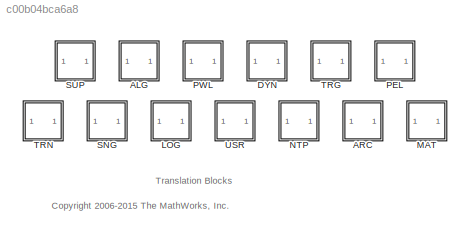
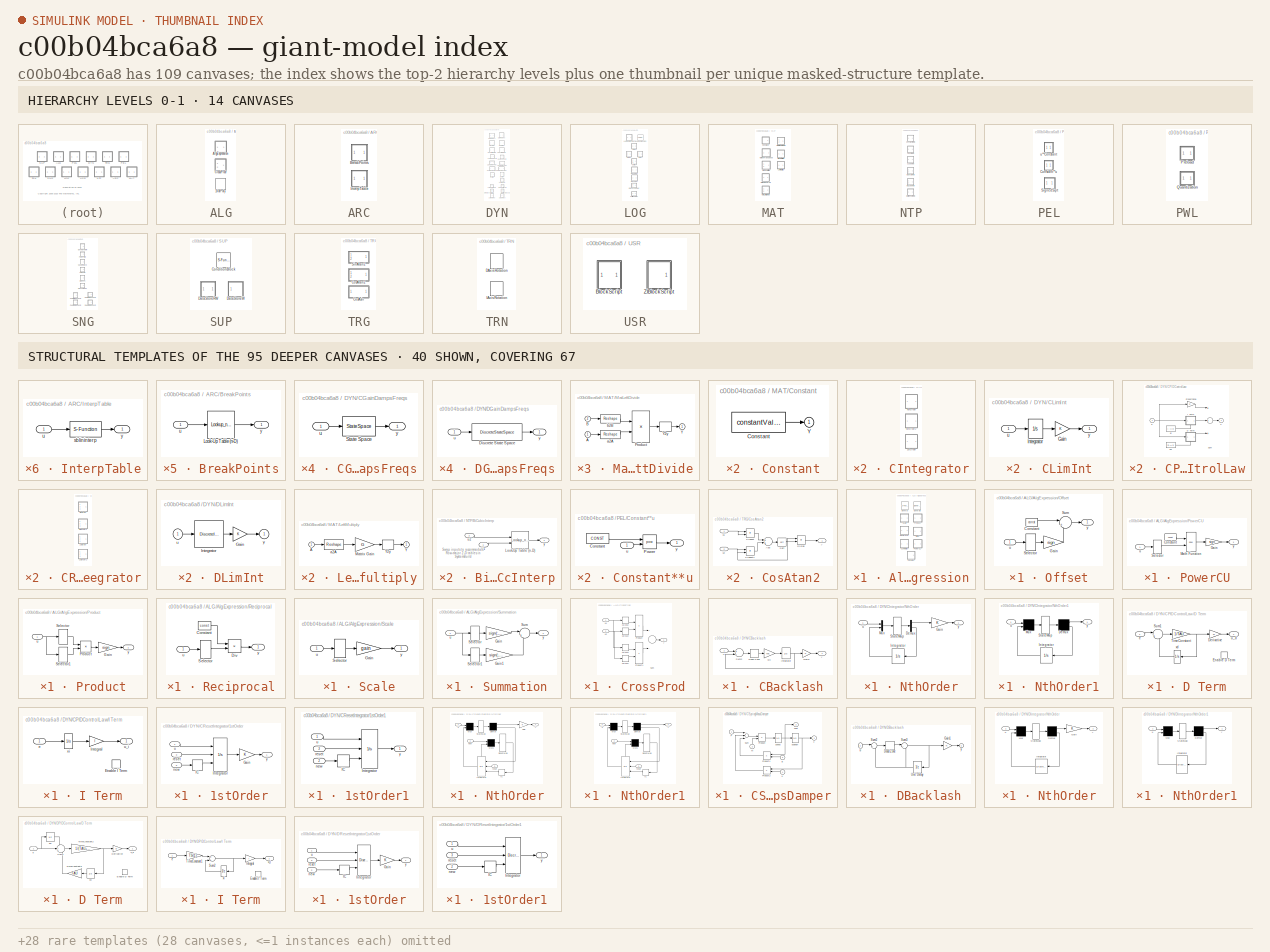
[diagram: thumbnail index - top-2 hierarchy levels (14 canvases) + 40 structural-template representatives of the remaining 95 canvases]
MODEL slx_c00b04bca6a8
KIND library
CONFIG AbsTol = auto
CONFIG EnableMultiTasking = off
CONFIG FixedStep = auto
CONFIG MaxStep = auto
CONFIG MinStep = auto
CONFIG PostLoadFcn = setsysloc libsb2slobsolete
CONFIG RelTol = 1e-3
CONFIG SampleTimeConstraint = Unconstrained
CONFIG Solver = ode45
CONFIG SolverName = ode45
CONFIG StartTime = 0.0
CONFIG StopTime = 10.0
BLOCK [SubSystem] ALG
  Ports = []
  RequestExecContextInheritance = off
BLOCK [S-Function] ALG/1VarPoly
  EnableBusSupport = off
  FunctionName = sb1varpoly
  Parameters = COEFF
  Ports = [1, 1]
  SFcnIsStateOwnerBlock = off
  SFunctionDeploymentMode = off
BLOCK [SubSystem] ALG/AlgExpression
  Ports = []
  RequestExecContextInheritance = off
BLOCK [SubSystem] ALG/AlgExpression/Constant
  Ports = [0, 1]
  RequestExecContextInheritance = off
BLOCK [Constant] ALG/AlgExpression/Constant/Constant
  Value = const
BLOCK [Outport] ALG/AlgExpression/Constant/y
  IconDisplay = Port number
BLOCK [S-Function] ALG/AlgExpression/General
  EnableBusSupport = off
  FunctionName = sbalgexp
  Parameters = code,stat,data,info,P0,TS
  Ports = [0, 1]
  SFcnIsStateOwnerBlock = off
  SFunctionDeploymentMode = off
BLOCK [Reference] ALG/AlgExpression/General0  REF=$bdroot/ALG/AlgExpression/General
  Ports = [0, 1]
  SourceBlock = $bdroot/ALG/AlgExpression/General
  SourceType = ALG-Palette
BLOCK [SubSystem] ALG/AlgExpression/Offset
  Ports = [1, 1]
  RequestExecContextInheritance = off
BLOCK [Constant] ALG/AlgExpression/Offset/Constant
  Value = const
BLOCK [Gain] ALG/AlgExpression/Offset/Gain
  Gain = sign
BLOCK [Selector] ALG/AlgExpression/Offset/Selector
  IndexOptions = Index vector (dialog)
  Indices = map
  InputPortWidth = ni
  OutputSizes = 1
  Ports = [1, 1]
BLOCK [Sum] ALG/AlgExpression/Offset/Sum
  IconShape = round
  Inputs = |++
  Ports = [2, 1]
BLOCK [Inport] ALG/AlgExpression/Offset/u
  IconDisplay = Port number
BLOCK [Outport] ALG/AlgExpression/Offset/y
  IconDisplay = Port number
BLOCK [SubSystem] ALG/AlgExpression/PowerCU
  Ports = [1, 1]
  RequestExecContextInheritance = off
BLOCK [Constant] ALG/AlgExpression/PowerCU/Constant
  Value = const
BLOCK [Gain] ALG/AlgExpression/PowerCU/Gain
  Gain = sign
BLOCK [Math] ALG/AlgExpression/PowerCU/Math Function
  Operator = pow
  Ports = [2, 1]
BLOCK [Selector] ALG/AlgExpression/PowerCU/Selector
  IndexOptions = Index vector (dialog)
  Indices = map
  InputPortWidth = ni
  OutputSizes = 1
  Ports = [1, 1]
BLOCK [Inport] ALG/AlgExpression/PowerCU/u
  IconDisplay = Port number
BLOCK [Outport] ALG/AlgExpression/PowerCU/y
  IconDisplay = Port number
BLOCK [SubSystem] ALG/AlgExpression/Product
  Ports = [1, 1]
  RequestExecContextInheritance = off
BLOCK [Gain] ALG/AlgExpression/Product/Gain
  Gain = sign
BLOCK [Product] ALG/AlgExpression/Product/Product
  Inputs = **
  Ports = [2, 1]
BLOCK [Selector] ALG/AlgExpression/Product/Selector
  IndexOptions = Index vector (dialog)
  Indices = map(:,1)
  InputPortWidth = ni
  OutputSizes = 1
  Ports = [1, 1]
BLOCK [Selector] ALG/AlgExpression/Product/Selector1
  IndexOptions = Index vector (dialog)
  Indices = map(:,2)
  InputPortWidth = ni
  OutputSizes = 1
  Ports = [1, 1]
BLOCK [Inport] ALG/AlgExpression/Product/u
  IconDisplay = Port number
BLOCK [Outport] ALG/AlgExpression/Product/y
  IconDisplay = Port number
BLOCK [SubSystem] ALG/AlgExpression/Reciprocal
  Ports = [1, 1]
  RequestExecContextInheritance = off
BLOCK [Constant] ALG/AlgExpression/Reciprocal/Constant
  Value = const
BLOCK [Product] ALG/AlgExpression/Reciprocal/Div
  Inputs = */
  Ports = [2, 1]
BLOCK [Selector] ALG/AlgExpression/Reciprocal/Selector
  IndexOptions = Index vector (dialog)
  Indices = map
  InputPortWidth = ni
  OutputSizes = 1
  Ports = [1, 1]
BLOCK [Inport] ALG/AlgExpression/Reciprocal/u
  IconDisplay = Port number
BLOCK [Outport] ALG/AlgExpression/Reciprocal/y
  IconDisplay = Port number
BLOCK [SubSystem] ALG/AlgExpression/Scale
  Ports = [1, 1]
  RequestExecContextInheritance = off
BLOCK [Gain] ALG/AlgExpression/Scale/Gain
  Gain = gain
BLOCK [Selector] ALG/AlgExpression/Scale/Selector
  IndexOptions = Index vector (dialog)
  Indices = map
  InputPortWidth = ni
  OutputSizes = 1
  Ports = [1, 1]
BLOCK [Inport] ALG/AlgExpression/Scale/u
  IconDisplay = Port number
BLOCK [Outport] ALG/AlgExpression/Scale/y
  IconDisplay = Port number
BLOCK [SubSystem] ALG/AlgExpression/Summation
  Ports = [1, 1]
  RequestExecContextInheritance = off
BLOCK [Gain] ALG/AlgExpression/Summation/Gain
  Gain = sign(:,1)
BLOCK [Gain] ALG/AlgExpression/Summation/Gain1
  Gain = sign(:,2)
BLOCK [Selector] ALG/AlgExpression/Summation/Selector
  IndexOptions = Index vector (dialog)
  Indices = map(:,1)
  InputPortWidth = ni
  OutputSizes = 1
  Ports = [1, 1]
BLOCK [Selector] ALG/AlgExpression/Summation/Selector1
  IndexOptions = Index vector (dialog)
  Indices = map(:,2)
  InputPortWidth = ni
  OutputSizes = 1
  Ports = [1, 1]
BLOCK [Sum] ALG/AlgExpression/Summation/Sum
  IconShape = round
  Inputs = |++
  Ports = [2, 1]
BLOCK [Inport] ALG/AlgExpression/Summation/u
  IconDisplay = Port number
BLOCK [Outport] ALG/AlgExpression/Summation/y
  IconDisplay = Port number
BLOCK [SubSystem] ALG/CrossProd
  Ports = [2, 1]
  RequestExecContextInheritance = off
BLOCK [Product] ALG/CrossProd/Product
  Ports = [2, 1]
BLOCK [Product] ALG/CrossProd/Product1
  Ports = [2, 1]
BLOCK [Sum] ALG/CrossProd/Sum
  Inputs = +-
  Ports = [2, 1]
BLOCK [Inport] ALG/CrossProd/u1
  IconDisplay = Port number
BLOCK [Selector] ALG/CrossProd/u1(231)
  IndexOptions = Index vector (dialog)
  Indices = [2 3 1]
  InputPortWidth = 3
  OutputSizes = 1
  Ports = [1, 1]
BLOCK [Selector] ALG/CrossProd/u1(312)
  IndexOptions = Index vector (dialog)
  Indices = [3 1 2]
  InputPortWidth = 3
  OutputSizes = 1
  Ports = [1, 1]
BLOCK [Inport] ALG/CrossProd/u2
  IconDisplay = Port number
  Port = 2
BLOCK [Selector] ALG/CrossProd/u2(231)
  IndexOptions = Index vector (dialog)
  Indices = [2 3 1]
  InputPortWidth = 3
  OutputSizes = 1
  Ports = [1, 1]
BLOCK [Selector] ALG/CrossProd/u2(312)
  IndexOptions = Index vector (dialog)
  Indices = [3 1 2]
  InputPortWidth = 3
  OutputSizes = 1
  Ports = [1, 1]
BLOCK [Outport] ALG/CrossProd/y
  IconDisplay = Port number
BLOCK [SubSystem] ARC
  Ports = []
  RequestExecContextInheritance = off
BLOCK [SubSystem] ARC/BreakPoints
  Ports = [1, 1]
  RequestExecContextInheritance = off
BLOCK [Lookup_n-D] ARC/BreakPoints/Look-Up Table (n-D)
  BeginIndexSearchUsingPreviousIndexResult = on
  BreakpointsForDimension1 = in1BrkPoints
  BreakpointsForDimension2 = [1:3]
  NumberOfTableDimensions = 1
  Ports = [1, 1]
  RndMeth = Simplest
  Table = outBrkPoints
  UseOneInputPortForAllInputData = on
BLOCK [Inport] ARC/BreakPoints/u
  IconDisplay = Port number
BLOCK [Outport] ARC/BreakPoints/y
  IconDisplay = Port number
BLOCK [SubSystem] ARC/InterpTable
  Ports = [1, 1]
  RequestExecContextInheritance = off
BLOCK [S-Function] ARC/InterpTable/sblininterp
  EnableBusSupport = off
  FunctionName = sblintable
  Parameters = numInp,in1BrkPoints,in2BrkPoints,outBrkPoints
  Ports = [1, 1]
  SFcnIsStateOwnerBlock = off
  SFunctionDeploymentMode = off
BLOCK [Inport] ARC/InterpTable/u
  IconDisplay = Port number
BLOCK [Outport] ARC/InterpTable/y
  IconDisplay = Port number
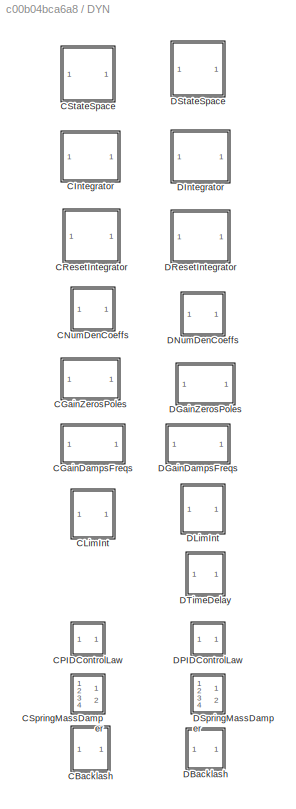
BLOCK [SubSystem] DYN
  Ports = []
  RequestExecContextInheritance = off
BLOCK [SubSystem] DYN/CBacklash
  Ports = [1, 1]
  RequestExecContextInheritance = off
BLOCK [DeadZone] DYN/CBacklash/Dead Zone
  LowerValue = lb
  UpperValue = ub
BLOCK [Gain] DYN/CBacklash/Gain1
  Gain = N
BLOCK [Integrator] DYN/CBacklash/Integrator
  InitialCondition = X0
  Ports = [1, 1]
BLOCK [Sum] DYN/CBacklash/Sum2
  Inputs = +-
  Ports = [2, 1]
BLOCK [Inport] DYN/CBacklash/u
  IconDisplay = Port number
BLOCK [Gain] DYN/CBacklash/wc
  Gain = Wc
BLOCK [Outport] DYN/CBacklash/y
  IconDisplay = Port number
BLOCK [SubSystem] DYN/CGainDampsFreqs
  Ports = [1, 1]
  RequestExecContextInheritance = off
BLOCK [StateSpace] DYN/CGainDampsFreqs/State Space
  A = A
  B = B
  C = C
  D = D
  InitialCondition = X0
  Ports = [1, 1]
BLOCK [Inport] DYN/CGainDampsFreqs/u
  IconDisplay = Port number
BLOCK [Outport] DYN/CGainDampsFreqs/y
  IconDisplay = Port number
BLOCK [SubSystem] DYN/CGainZerosPoles
  Ports = [1, 1]
  RequestExecContextInheritance = off
BLOCK [StateSpace] DYN/CGainZerosPoles/State Space
  A = A
  B = B
  C = C
  D = D
  InitialCondition = X0
  Ports = [1, 1]
BLOCK [Inport] DYN/CGainZerosPoles/u
  IconDisplay = Port number
BLOCK [Outport] DYN/CGainZerosPoles/y
  IconDisplay = Port number
BLOCK [SubSystem] DYN/CIntegrator
  Ports = []
  RequestExecContextInheritance = off
BLOCK [SubSystem] DYN/CIntegrator/1stOrder
  Ports = [1, 1]
  RequestExecContextInheritance = off
BLOCK [Gain] DYN/CIntegrator/1stOrder/Gain
  Gain = K
BLOCK [Integrator] DYN/CIntegrator/1stOrder/Integrator
  InitialCondition = X0
  Ports = [1, 1]
BLOCK [Inport] DYN/CIntegrator/1stOrder/u
  IconDisplay = Port number
BLOCK [Outport] DYN/CIntegrator/1stOrder/y
  IconDisplay = Port number
BLOCK [SubSystem] DYN/CIntegrator/NthOrder
  Ports = [1, 1]
  RequestExecContextInheritance = off
BLOCK [Demux] DYN/CIntegrator/NthOrder/Demux
  Outputs = [no no*N]
  Ports = [1, 2]
BLOCK [Gain] DYN/CIntegrator/NthOrder/Gain
  Gain = K
BLOCK [Integrator] DYN/CIntegrator/NthOrder/Integrator
  InitialCondition = X0
  Ports = [1, 1]
BLOCK [Mux] DYN/CIntegrator/NthOrder/Mux
  Inputs = [no no*N]
  Ports = [2, 1]
BLOCK [Selector] DYN/CIntegrator/NthOrder/StateMap
  IndexOptions = Index vector (dialog)
  Indices = stateMap
  InputPortWidth = no*(1+N)
  OutputSizes = 1
  Ports = [1, 1]
BLOCK [Inport] DYN/CIntegrator/NthOrder/u
  IconDisplay = Port number
BLOCK [Outport] DYN/CIntegrator/NthOrder/y
  IconDisplay = Port number
BLOCK [SubSystem] DYN/CIntegrator/NthOrder1
  Ports = [1, 1]
  RequestExecContextInheritance = off
BLOCK [Demux] DYN/CIntegrator/NthOrder1/Demux
  Outputs = [no no*N]
  Ports = [1, 2]
BLOCK [Integrator] DYN/CIntegrator/NthOrder1/Integrator
  InitialCondition = X0
  Ports = [1, 1]
BLOCK [Mux] DYN/CIntegrator/NthOrder1/Mux
  Inputs = [no no*N]
  Ports = [2, 1]
BLOCK [Selector] DYN/CIntegrator/NthOrder1/StateMap
  IndexOptions = Index vector (dialog)
  Indices = stateMap
  InputPortWidth = no*(1+N)
  OutputSizes = 1
  Ports = [1, 1]
BLOCK [Inport] DYN/CIntegrator/NthOrder1/u
  IconDisplay = Port number
BLOCK [Outport] DYN/CIntegrator/NthOrder1/y
  IconDisplay = Port number
BLOCK [SubSystem] DYN/CLimInt
  Ports = [1, 1]
  RequestExecContextInheritance = off
BLOCK [Gain] DYN/CLimInt/Gain
  Gain = K
BLOCK [Integrator] DYN/CLimInt/Integrator
  InitialCondition = X0
  LimitOutput = on
  LowerSaturationLimit = LB
  Ports = [1, 1]
  UpperSaturationLimit = UB
BLOCK [Inport] DYN/CLimInt/u
  IconDisplay = Port number
BLOCK [Outport] DYN/CLimInt/y
  IconDisplay = Port number
BLOCK [SubSystem] DYN/CNumDenCoeffs
  Ports = [1, 1]
  RequestExecContextInheritance = off
BLOCK [StateSpace] DYN/CNumDenCoeffs/State Space
  A = Ac
  B = Bc
  C = Cc
  D = Dc
  InitialCondition = X0
  Ports = [1, 1]
BLOCK [Inport] DYN/CNumDenCoeffs/u
  IconDisplay = Port number
BLOCK [Outport] DYN/CNumDenCoeffs/y
  IconDisplay = Port number
BLOCK [SubSystem] DYN/CPIDControlLaw
  Ports = [1, 1]
  RequestExecContextInheritance = off
BLOCK [SubSystem] DYN/CPIDControlLaw/D Term
  Ports = [1, 1, 1]
  RequestExecContextInheritance = off
  TreatAsAtomicUnit = on
BLOCK [Gain] DYN/CPIDControlLaw/D Term/Derivative
  Gain = D
BLOCK [EnablePort] DYN/CPIDControlLaw/D Term/Enable D Term
  Ports = []
  PropagateVarSize = During execution
  StatesWhenEnabling = reset
BLOCK [Sum] DYN/CPIDControlLaw/D Term/Sum1
  IconShape = round
  Inputs = |+-
  Ports = [2, 1]
BLOCK [Gain] DYN/CPIDControlLaw/D Term/TimeConstant
  Gain = 1/TAU
BLOCK [Inport] DYN/CPIDControlLaw/D Term/e
  IconDisplay = Port number
BLOCK [Outport] DYN/CPIDControlLaw/D Term/u_d
  IconDisplay = Port number
BLOCK [Integrator] DYN/CPIDControlLaw/D Term/xd
  InitialCondition = xd
  Ports = [1, 1]
BLOCK [SubSystem] DYN/CPIDControlLaw/I Term
  Ports = [1, 1, 1]
  RequestExecContextInheritance = off
  TreatAsAtomicUnit = on
BLOCK [EnablePort] DYN/CPIDControlLaw/I Term/Enable I Term
  Ports = []
  PropagateVarSize = During execution
  StatesWhenEnabling = reset
BLOCK [Gain] DYN/CPIDControlLaw/I Term/Integral
  Gain = I
BLOCK [Inport] DYN/CPIDControlLaw/I Term/e
  IconDisplay = Port number
BLOCK [Outport] DYN/CPIDControlLaw/I Term/u_i
  IconDisplay = Port number
BLOCK [Integrator] DYN/CPIDControlLaw/I Term/xi
  InitialCondition = xi
  Ports = [1, 1]
BLOCK [Gain] DYN/CPIDControlLaw/Proportional
  Gain = P
BLOCK [Sum] DYN/CPIDControlLaw/Sum
  Inputs = +++
  Ports = [3, 1]
BLOCK [Inport] DYN/CPIDControlLaw/e
  IconDisplay = Port number
BLOCK [Constant] DYN/CPIDControlLaw/ed
  Value = D ~= 0
BLOCK [Constant] DYN/CPIDControlLaw/ei
  Value = I ~= 0
BLOCK [Outport] DYN/CPIDControlLaw/u
  IconDisplay = Port number
BLOCK [SubSystem] DYN/CResetIntegrator
  Ports = []
  RequestExecContextInheritance = off
BLOCK [SubSystem] DYN/CResetIntegrator/1stOrder
  Ports = [3, 1]
  RequestExecContextInheritance = off
BLOCK [Gain] DYN/CResetIntegrator/1stOrder/Gain
  Gain = K
BLOCK [InitialCondition] DYN/CResetIntegrator/1stOrder/IC
  Value = X0
BLOCK [Integrator] DYN/CResetIntegrator/1stOrder/Integrator
  ExternalReset = rising
  InitialCondition = X0
  InitialConditionSource = external
  Ports = [3, 1]
BLOCK [Inport] DYN/CResetIntegrator/1stOrder/new
  IconDisplay = Port number
  Port = 2
BLOCK [Inport] DYN/CResetIntegrator/1stOrder/reset
  IconDisplay = Port number
  Port = 3
BLOCK [Inport] DYN/CResetIntegrator/1stOrder/u
  IconDisplay = Port number
BLOCK [Outport] DYN/CResetIntegrator/1stOrder/y
  IconDisplay = Port number
BLOCK [SubSystem] DYN/CResetIntegrator/1stOrder1
  Ports = [3, 1]
  RequestExecContextInheritance = off
BLOCK [InitialCondition] DYN/CResetIntegrator/1stOrder1/IC
  Value = X0
BLOCK [Integrator] DYN/CResetIntegrator/1stOrder1/Integrator
  ExternalReset = rising
  InitialCondition = X0
  InitialConditionSource = external
  Ports = [3, 1]
BLOCK [Inport] DYN/CResetIntegrator/1stOrder1/new
  IconDisplay = Port number
  Port = 2
BLOCK [Inport] DYN/CResetIntegrator/1stOrder1/reset
  IconDisplay = Port number
  Port = 3
BLOCK [Inport] DYN/CResetIntegrator/1stOrder1/u
  IconDisplay = Port number
BLOCK [Outport] DYN/CResetIntegrator/1stOrder1/y
  IconDisplay = Port number
BLOCK [SubSystem] DYN/CResetIntegrator/NthOrder
  Ports = [3, 1]
  RequestExecContextInheritance = off
BLOCK [Demux] DYN/CResetIntegrator/NthOrder/Demux
  Outputs = [no no*N]
  Ports = [1, 2]
BLOCK [Gain] DYN/CResetIntegrator/NthOrder/Gain
  Gain = K
BLOCK [InitialCondition] DYN/CResetIntegrator/NthOrder/IC
  Value = X0
BLOCK [Integrator] DYN/CResetIntegrator/NthOrder/Integrator
  ExternalReset = rising
  InitialCondition = X0
  InitialConditionSource = external
  Ports = [3, 1, 0, 0, 1]
  ShowStatePort = on
BLOCK [Mux] DYN/CResetIntegrator/NthOrder/Mux
  Inputs = [no no*N]
  Ports = [2, 1]
BLOCK [Mux] DYN/CResetIntegrator/NthOrder/Mux1
  Inputs = [NR N]*no
  Ports = [2, 1]
BLOCK [Selector] DYN/CResetIntegrator/NthOrder/ResetMap
  IndexOptions = Index vector (dialog)
  Indices = resetMap
  InputPortWidth = (NR+N)*no
  OutputSizes = 1
  Ports = [1, 1]
BLOCK [Selector] DYN/CResetIntegrator/NthOrder/StateMap
  IndexOptions = Index vector (dialog)
  Indices = stateMap
  InputPortWidth = no*(1+N)
  OutputSizes = 1
  Ports = [1, 1]
BLOCK [Inport] DYN/CResetIntegrator/NthOrder/new
  IconDisplay = Port number
  Port = 2
BLOCK [Inport] DYN/CResetIntegrator/NthOrder/reset
  IconDisplay = Port number
  Port = 3
BLOCK [Inport] DYN/CResetIntegrator/NthOrder/u
  IconDisplay = Port number
BLOCK [Outport] DYN/CResetIntegrator/NthOrder/y
  IconDisplay = Port number
BLOCK [SubSystem] DYN/CResetIntegrator/NthOrder1
  Ports = [3, 1]
  RequestExecContextInheritance = off
BLOCK [Demux] DYN/CResetIntegrator/NthOrder1/Demux
  Outputs = [no no*N]
  Ports = [1, 2]
BLOCK [InitialCondition] DYN/CResetIntegrator/NthOrder1/IC
  Value = X0
BLOCK [Integrator] DYN/CResetIntegrator/NthOrder1/Integrator
  ExternalReset = rising
  InitialCondition = X0
  InitialConditionSource = external
  Ports = [3, 1, 0, 0, 1]
  ShowStatePort = on
BLOCK [Mux] DYN/CResetIntegrator/NthOrder1/Mux
  Inputs = [no no*N]
  Ports = [2, 1]
BLOCK [Mux] DYN/CResetIntegrator/NthOrder1/Mux1
  Inputs = [NR N]*no
  Ports = [2, 1]
BLOCK [Selector] DYN/CResetIntegrator/NthOrder1/ResetMap
  IndexOptions = Index vector (dialog)
  Indices = resetMap
  InputPortWidth = (NR+N)*no
  OutputSizes = 1
  Ports = [1, 1]
BLOCK [Selector] DYN/CResetIntegrator/NthOrder1/StateMap
  IndexOptions = Index vector (dialog)
  Indices = stateMap
  InputPortWidth = no*(1+N)
  OutputSizes = 1
  Ports = [1, 1]
BLOCK [Inport] DYN/CResetIntegrator/NthOrder1/new
  IconDisplay = Port number
  Port = 2
BLOCK [Inport] DYN/CResetIntegrator/NthOrder1/reset
  IconDisplay = Port number
  Port = 3
BLOCK [Inport] DYN/CResetIntegrator/NthOrder1/u
  IconDisplay = Port number
BLOCK [Outport] DYN/CResetIntegrator/NthOrder1/y
  IconDisplay = Port number
BLOCK [SubSystem] DYN/CSpringMassDamper
  Ports = [4, 2]
  RequestExecContextInheritance = off
BLOCK [Inport] DYN/CSpringMassDamper/B
  IconDisplay = Port number
  Port = 3
BLOCK [Inport] DYN/CSpringMassDamper/F
  IconDisplay = Port number
BLOCK [Inport] DYN/CSpringMassDamper/K
  IconDisplay = Port number
  Port = 4
BLOCK [Inport] DYN/CSpringMassDamper/M
  IconDisplay = Port number
  Port = 2
BLOCK [Product] DYN/CSpringMassDamper/Product
  Inputs = */
  Ports = [2, 1]
BLOCK [Product] DYN/CSpringMassDamper/Product1
  Ports = [2, 1]
BLOCK [Product] DYN/CSpringMassDamper/Product2
  Ports = [2, 1]
BLOCK [Sum] DYN/CSpringMassDamper/Sum
  Inputs = +--
  Ports = [3, 1]
BLOCK [Integrator] DYN/CSpringMassDamper/position
  InitialCondition = X0(1)
  Ports = [1, 1]
BLOCK [Integrator] DYN/CSpringMassDamper/speed
  InitialCondition = X0(2)
  Ports = [1, 1]
BLOCK [Outport] DYN/CSpringMassDamper/x
  IconDisplay = Port number
BLOCK [Outport] DYN/CSpringMassDamper/xdot
  IconDisplay = Port number
  Port = 2
BLOCK [SubSystem] DYN/CStateSpace
  Ports = [1, 1]
  RequestExecContextInheritance = off
BLOCK [StateSpace] DYN/CStateSpace/StateSpace
  A = A
  B = B
  C = C
  D = D
  InitialCondition = X0
  Ports = [1, 1]
BLOCK [Inport] DYN/CStateSpace/u
  IconDisplay = Port number
BLOCK [Outport] DYN/CStateSpace/y
  IconDisplay = Port number
BLOCK [SubSystem] DYN/DBacklash
  Ports = [1, 1]
  RequestExecContextInheritance = off
BLOCK [DeadZone] DYN/DBacklash/Dead Zone
  LowerValue = lb
  UpperValue = ub
BLOCK [Gain] DYN/DBacklash/Gain1
  Gain = N
BLOCK [Sum] DYN/DBacklash/Sum2
  IconShape = round
  Inputs = |+-
  Ports = [2, 1]
BLOCK [Sum] DYN/DBacklash/Sum3
  IconShape = round
  Inputs = |++
  Ports = [2, 1]
BLOCK [UnitDelay] DYN/DBacklash/Unit Delay
  HasFrameUpgradeWarning = on
  InitialCondition = X0
  SampleTime = TS
BLOCK [Inport] DYN/DBacklash/u
  IconDisplay = Port number
  SampleTime = TS
BLOCK [Outport] DYN/DBacklash/y
  IconDisplay = Port number
BLOCK [SubSystem] DYN/DGainDampsFreqs
  Ports = [1, 1]
  RequestExecContextInheritance = off
BLOCK [DiscreteStateSpace] DYN/DGainDampsFreqs/Discrete State Space
  A = A
  B = B
  C = C
  D = D
  InitialCondition = X0
  SampleTime = TS
BLOCK [Inport] DYN/DGainDampsFreqs/u
  IconDisplay = Port number
  SampleTime = TS
BLOCK [Outport] DYN/DGainDampsFreqs/y
  IconDisplay = Port number
BLOCK [SubSystem] DYN/DGainZerosPoles
  Ports = [1, 1]
  RequestExecContextInheritance = off
BLOCK [DiscreteStateSpace] DYN/DGainZerosPoles/Discrete State Space
  A = A
  B = B
  C = C
  D = D
  InitialCondition = X0
  SampleTime = TS
BLOCK [Inport] DYN/DGainZerosPoles/u
  IconDisplay = Port number
  SampleTime = TS
BLOCK [Outport] DYN/DGainZerosPoles/y
  IconDisplay = Port number
BLOCK [SubSystem] DYN/DIntegrator
  Ports = []
  RequestExecContextInheritance = off
BLOCK [SubSystem] DYN/DIntegrator/1stOrder
  Ports = [1, 1]
  RequestExecContextInheritance = off
BLOCK [Gain] DYN/DIntegrator/1stOrder/Gain
  Gain = K
BLOCK [DiscreteIntegrator] DYN/DIntegrator/1stOrder/Integrator
  ICPrevOutput = DiscIntNeverNeededParam
  ICPrevScaledInput = DiscIntNeverNeededParam
  InitialCondition = X0
  Ports = [1, 1]
  SampleTime = TS
BLOCK [Inport] DYN/DIntegrator/1stOrder/u
  IconDisplay = Port number
  SampleTime = TS
BLOCK [Outport] DYN/DIntegrator/1stOrder/y
  IconDisplay = Port number
BLOCK [SubSystem] DYN/DIntegrator/NthOrder
  Ports = [1, 1]
  RequestExecContextInheritance = off
BLOCK [Demux] DYN/DIntegrator/NthOrder/Demux
  Outputs = [no no*N]
  Ports = [1, 2]
BLOCK [Gain] DYN/DIntegrator/NthOrder/Gain
  Gain = K
BLOCK [DiscreteIntegrator] DYN/DIntegrator/NthOrder/Integrator
  ICPrevOutput = DiscIntNeverNeededParam
  ICPrevScaledInput = DiscIntNeverNeededParam
  InitialCondition = X0
  Ports = [1, 1]
  SampleTime = TS
BLOCK [Mux] DYN/DIntegrator/NthOrder/Mux
  Inputs = [no no*N]
  Ports = [2, 1]
BLOCK [Selector] DYN/DIntegrator/NthOrder/StateMap
  IndexOptions = Index vector (dialog)
  Indices = stateMap
  InputPortWidth = no*(1+N)
  OutputSizes = 1
  Ports = [1, 1]
BLOCK [Inport] DYN/DIntegrator/NthOrder/u
  IconDisplay = Port number
  SampleTime = TS
BLOCK [Outport] DYN/DIntegrator/NthOrder/y
  IconDisplay = Port number
BLOCK [SubSystem] DYN/DIntegrator/NthOrder1
  Ports = [1, 1]
  RequestExecContextInheritance = off
BLOCK [Demux] DYN/DIntegrator/NthOrder1/Demux
  Outputs = [no no*N]
  Ports = [1, 2]
BLOCK [DiscreteIntegrator] DYN/DIntegrator/NthOrder1/Integrator
  ICPrevOutput = DiscIntNeverNeededParam
  ICPrevScaledInput = DiscIntNeverNeededParam
  InitialCondition = X0
  Ports = [1, 1]
  SampleTime = TS
BLOCK [Mux] DYN/DIntegrator/NthOrder1/Mux
  Inputs = [no no*N]
  Ports = [2, 1]
BLOCK [Selector] DYN/DIntegrator/NthOrder1/StateMap
  IndexOptions = Index vector (dialog)
  Indices = stateMap
  InputPortWidth = no*(1+N)
  OutputSizes = 1
  Ports = [1, 1]
BLOCK [Inport] DYN/DIntegrator/NthOrder1/u
  IconDisplay = Port number
  SampleTime = TS
BLOCK [Outport] DYN/DIntegrator/NthOrder1/y
  IconDisplay = Port number
BLOCK [SubSystem] DYN/DLimInt
  Ports = [1, 1]
  RequestExecContextInheritance = off
BLOCK [Gain] DYN/DLimInt/Gain
  Gain = K
BLOCK [DiscreteIntegrator] DYN/DLimInt/Integrator
  ICPrevOutput = DiscIntNeverNeededParam
  ICPrevScaledInput = DiscIntNeverNeededParam
  InitialCondition = X0
  LimitOutput = on
  LowerSaturationLimit = LB
  Ports = [1, 1]
  SampleTime = TS
  UpperSaturationLimit = UB
BLOCK [Inport] DYN/DLimInt/u
  IconDisplay = Port number
  SampleTime = TS
BLOCK [Outport] DYN/DLimInt/y
  IconDisplay = Port number
BLOCK [SubSystem] DYN/DNumDenCoeffs
  Ports = [1, 1]
  RequestExecContextInheritance = off
BLOCK [DiscreteStateSpace] DYN/DNumDenCoeffs/Discrete State Space
  A = Ad
  B = Bd
  C = Cd
  D = Dd
  InitialCondition = X0
  SampleTime = TS
BLOCK [Inport] DYN/DNumDenCoeffs/u
  IconDisplay = Port number
  SampleTime = TS
BLOCK [Outport] DYN/DNumDenCoeffs/y
  IconDisplay = Port number
BLOCK [SubSystem] DYN/DPIDControlLaw
  Ports = [1, 1]
  RequestExecContextInheritance = off
BLOCK [SubSystem] DYN/DPIDControlLaw/D Term
  Ports = [1, 1, 1]
  RequestExecContextInheritance = off
  TreatAsAtomicUnit = on
BLOCK [Gain] DYN/DPIDControlLaw/D Term/Derivative
  Gain = D
BLOCK [EnablePort] DYN/DPIDControlLaw/D Term/Enable D Term
  Ports = []
  PropagateVarSize = During execution
  StatesWhenEnabling = reset
BLOCK [Sum] DYN/DPIDControlLaw/D Term/Sum1
  IconShape = round
  Inputs = -++
  Ports = [3, 1]
BLOCK [Gain] DYN/DPIDControlLaw/D Term/TimeConstant2
  Gain = 1/(TAU+TS(1))
BLOCK [Gain] DYN/DPIDControlLaw/D Term/TimeConstant3
  Gain = TAU
BLOCK [Inport] DYN/DPIDControlLaw/D Term/e
  IconDisplay = Port number
BLOCK [UnitDelay] DYN/DPIDControlLaw/D Term/ed
  HasFrameUpgradeWarning = on
  SampleTime = TS
BLOCK [Outport] DYN/DPIDControlLaw/D Term/u_d
  IconDisplay = Port number
BLOCK [UnitDelay] DYN/DPIDControlLaw/D Term/xd
  HasFrameUpgradeWarning = on
  InitialCondition = xd
  SampleTime = TS
BLOCK [SubSystem] DYN/DPIDControlLaw/I Term
  Ports = [1, 1, 1]
  RequestExecContextInheritance = off
  TreatAsAtomicUnit = on
BLOCK [EnablePort] DYN/DPIDControlLaw/I Term/Enable I Term
  Ports = []
  PropagateVarSize = During execution
  StatesWhenEnabling = reset
BLOCK [Gain] DYN/DPIDControlLaw/I Term/Integral
  Gain = I
BLOCK [Sum] DYN/DPIDControlLaw/I Term/Sum2
  Ports = [2, 1]
BLOCK [Gain] DYN/DPIDControlLaw/I Term/TimeConstant1
  Gain = TS(1)
BLOCK [Inport] DYN/DPIDControlLaw/I Term/e
  IconDisplay = Port number
BLOCK [Outport] DYN/DPIDControlLaw/I Term/u_i
  IconDisplay = Port number
BLOCK [UnitDelay] DYN/DPIDControlLaw/I Term/xi
  HasFrameUpgradeWarning = on
  InitialCondition = xi
  SampleTime = TS
BLOCK [Gain] DYN/DPIDControlLaw/Proportional
  Gain = P
BLOCK [Sum] DYN/DPIDControlLaw/Sum
  Inputs = +++
  Ports = [3, 1]
BLOCK [Inport] DYN/DPIDControlLaw/e
  IconDisplay = Port number
  SampleTime = TS
BLOCK [Constant] DYN/DPIDControlLaw/ed
  Value = D ~= 0
BLOCK [Constant] DYN/DPIDControlLaw/ei
  Value = I ~= 0
BLOCK [Outport] DYN/DPIDControlLaw/u
  IconDisplay = Port number
BLOCK [SubSystem] DYN/DResetIntegrator
  Ports = []
  RequestExecContextInheritance = off
BLOCK [SubSystem] DYN/DResetIntegrator/1stOrder
  Ports = [3, 1]
  RequestExecContextInheritance = off
BLOCK [Gain] DYN/DResetIntegrator/1stOrder/Gain
  Gain = K
BLOCK [InitialCondition] DYN/DResetIntegrator/1stOrder/IC
  Value = X0
BLOCK [DiscreteIntegrator] DYN/DResetIntegrator/1stOrder/Integrator
  ExternalReset = rising
  ICPrevOutput = DiscIntNeverNeededParam
  ICPrevScaledInput = DiscIntNeverNeededParam
  InitialCondition = X0
  InitialConditionSource = external
  Ports = [3, 1]
  SampleTime = TS
BLOCK [Inport] DYN/DResetIntegrator/1stOrder/new
  IconDisplay = Port number
  Port = 2
  SampleTime = TS
BLOCK [Inport] DYN/DResetIntegrator/1stOrder/reset
  IconDisplay = Port number
  Port = 3
  SampleTime = TS
BLOCK [Inport] DYN/DResetIntegrator/1stOrder/u
  IconDisplay = Port number
  SampleTime = TS
BLOCK [Outport] DYN/DResetIntegrator/1stOrder/y
  IconDisplay = Port number
BLOCK [SubSystem] DYN/DResetIntegrator/1stOrder1
  Ports = [3, 1]
  RequestExecContextInheritance = off
BLOCK [InitialCondition] DYN/DResetIntegrator/1stOrder1/IC
  Value = X0
BLOCK [DiscreteIntegrator] DYN/DResetIntegrator/1stOrder1/Integrator
  ExternalReset = rising
  ICPrevOutput = DiscIntNeverNeededParam
  ICPrevScaledInput = DiscIntNeverNeededParam
  InitialCondition = X0
  InitialConditionSource = external
  Ports = [3, 1]
  SampleTime = TS
BLOCK [Inport] DYN/DResetIntegrator/1stOrder1/new
  IconDisplay = Port number
  Port = 2
  SampleTime = TS
BLOCK [Inport] DYN/DResetIntegrator/1stOrder1/reset
  IconDisplay = Port number
  Port = 3
  SampleTime = TS
BLOCK [Inport] DYN/DResetIntegrator/1stOrder1/u
  IconDisplay = Port number
  SampleTime = TS
BLOCK [Outport] DYN/DResetIntegrator/1stOrder1/y
  IconDisplay = Port number
BLOCK [SubSystem] DYN/DResetIntegrator/NthOrder
  Ports = [3, 1]
  RequestExecContextInheritance = off
BLOCK [Demux] DYN/DResetIntegrator/NthOrder/Demux
  Outputs = [no no*N]
  Ports = [1, 2]
BLOCK [Gain] DYN/DResetIntegrator/NthOrder/Gain
  Gain = K
BLOCK [InitialCondition] DYN/DResetIntegrator/NthOrder/IC
  Value = X0
BLOCK [DiscreteIntegrator] DYN/DResetIntegrator/NthOrder/Integrator
  ExternalReset = rising
  ICPrevOutput = DiscIntNeverNeededParam
  ICPrevScaledInput = DiscIntNeverNeededParam
  InitialCondition = X0
  InitialConditionSource = external
  Ports = [3, 1, 0, 0, 1]
  SampleTime = TS
  ShowStatePort = on
BLOCK [Mux] DYN/DResetIntegrator/NthOrder/Mux
  Inputs = [no no*N]
  Ports = [2, 1]
BLOCK [Mux] DYN/DResetIntegrator/NthOrder/Mux1
  Inputs = [NR N]*no
  Ports = [2, 1]
BLOCK [Selector] DYN/DResetIntegrator/NthOrder/ResetMap
  IndexOptions = Index vector (dialog)
  Indices = resetMap
  InputPortWidth = (NR+N)*no
  OutputSizes = 1
  Ports = [1, 1]
BLOCK [Selector] DYN/DResetIntegrator/NthOrder/StateMap
  IndexOptions = Index vector (dialog)
  Indices = stateMap
  InputPortWidth = no*(1+N)
  OutputSizes = 1
  Ports = [1, 1]
BLOCK [Inport] DYN/DResetIntegrator/NthOrder/new
  IconDisplay = Port number
  Port = 2
  SampleTime = TS
BLOCK [Inport] DYN/DResetIntegrator/NthOrder/reset
  IconDisplay = Port number
  Port = 3
  SampleTime = TS
BLOCK [Inport] DYN/DResetIntegrator/NthOrder/u
  IconDisplay = Port number
  SampleTime = TS
BLOCK [Outport] DYN/DResetIntegrator/NthOrder/y
  IconDisplay = Port number
BLOCK [SubSystem] DYN/DResetIntegrator/NthOrder1
  Ports = [3, 1]
  RequestExecContextInheritance = off
BLOCK [Demux] DYN/DResetIntegrator/NthOrder1/Demux
  Outputs = [no no*N]
  Ports = [1, 2]
BLOCK [InitialCondition] DYN/DResetIntegrator/NthOrder1/IC
  Value = X0
BLOCK [DiscreteIntegrator] DYN/DResetIntegrator/NthOrder1/Integrator
  ExternalReset = rising
  ICPrevOutput = DiscIntNeverNeededParam
  ICPrevScaledInput = DiscIntNeverNeededParam
  InitialCondition = X0
  InitialConditionSource = external
  Ports = [3, 1, 0, 0, 1]
  SampleTime = TS
  ShowStatePort = on
BLOCK [Mux] DYN/DResetIntegrator/NthOrder1/Mux
  Inputs = [no no*N]
  Ports = [2, 1]
BLOCK [Mux] DYN/DResetIntegrator/NthOrder1/Mux1
  Inputs = [NR N]*no
  Ports = [2, 1]
BLOCK [Selector] DYN/DResetIntegrator/NthOrder1/ResetMap
  IndexOptions = Index vector (dialog)
  Indices = resetMap
  InputPortWidth = (NR+N)*no
  OutputSizes = 1
  Ports = [1, 1]
BLOCK [Selector] DYN/DResetIntegrator/NthOrder1/StateMap
  IndexOptions = Index vector (dialog)
  Indices = stateMap
  InputPortWidth = no*(1+N)
  OutputSizes = 1
  Ports = [1, 1]
BLOCK [Inport] DYN/DResetIntegrator/NthOrder1/new
  IconDisplay = Port number
  Port = 2
  SampleTime = TS
BLOCK [Inport] DYN/DResetIntegrator/NthOrder1/reset
  IconDisplay = Port number
  Port = 3
  SampleTime = TS
BLOCK [Inport] DYN/DResetIntegrator/NthOrder1/u
  IconDisplay = Port number
  SampleTime = TS
BLOCK [Outport] DYN/DResetIntegrator/NthOrder1/y
  IconDisplay = Port number
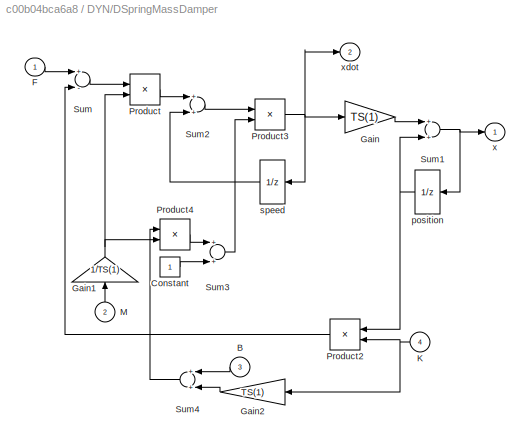
BLOCK [SubSystem] DYN/DSpringMassDamper
  Ports = [4, 2]
  RequestExecContextInheritance = off
BLOCK [Inport] DYN/DSpringMassDamper/B
  IconDisplay = Port number
  Port = 3
  SampleTime = TS
BLOCK [Constant] DYN/DSpringMassDamper/Constant
BLOCK [Inport] DYN/DSpringMassDamper/F
  IconDisplay = Port number
  SampleTime = TS
BLOCK [Gain] DYN/DSpringMassDamper/Gain
  Gain = TS(1)
BLOCK [Gain] DYN/DSpringMassDamper/Gain1
  Gain = 1/TS(1)
BLOCK [Gain] DYN/DSpringMassDamper/Gain2
  Gain = TS(1)
BLOCK [Inport] DYN/DSpringMassDamper/K
  IconDisplay = Port number
  Port = 4
  SampleTime = TS
BLOCK [Inport] DYN/DSpringMassDamper/M
  IconDisplay = Port number
  Port = 2
  SampleTime = TS
BLOCK [Product] DYN/DSpringMassDamper/Product
  Inputs = */
  Ports = [2, 1]
BLOCK [Product] DYN/DSpringMassDamper/Product2
  Ports = [2, 1]
BLOCK [Product] DYN/DSpringMassDamper/Product3
  Inputs = */
  Ports = [2, 1]
BLOCK [Product] DYN/DSpringMassDamper/Product4
  Inputs = */
  Ports = [2, 1]
BLOCK [Sum] DYN/DSpringMassDamper/Sum
  Inputs = +-
  Ports = [2, 1]
BLOCK [Sum] DYN/DSpringMassDamper/Sum1
  Ports = [2, 1]
BLOCK [Sum] DYN/DSpringMassDamper/Sum2
  Ports = [2, 1]
BLOCK [Sum] DYN/DSpringMassDamper/Sum3
  Ports = [2, 1]
BLOCK [Sum] DYN/DSpringMassDamper/Sum4
  Ports = [2, 1]
BLOCK [UnitDelay] DYN/DSpringMassDamper/position
  HasFrameUpgradeWarning = on
  InitialCondition = X0(1)
  SampleTime = TS
BLOCK [UnitDelay] DYN/DSpringMassDamper/speed
  HasFrameUpgradeWarning = on
  InitialCondition = X0(2)
  SampleTime = TS
BLOCK [Outport] DYN/DSpringMassDamper/x
  IconDisplay = Port number
  InitialOutput = X0(1)
BLOCK [Outport] DYN/DSpringMassDamper/xdot
  IconDisplay = Port number
  InitialOutput = X0(2)
  Port = 2
BLOCK [SubSystem] DYN/DStateSpace
  Ports = [1, 1]
  RequestExecContextInheritance = off
BLOCK [DiscreteStateSpace] DYN/DStateSpace/StateSpace
  A = A
  B = B
  C = C
  D = D
  InitialCondition = X0
  SampleTime = TS
BLOCK [Inport] DYN/DStateSpace/u
  IconDisplay = Port number
BLOCK [Outport] DYN/DStateSpace/y
  IconDisplay = Port number
BLOCK [SubSystem] DYN/DTimeDelay
  Ports = [1, 1]
  RequestExecContextInheritance = off
BLOCK [Demux] DYN/DTimeDelay/Demux
  Outputs = [no no (k+1)*no]
  Ports = [1, 3]
BLOCK [Mux] DYN/DTimeDelay/Mux
  DisplayOption = bar
  Inputs = [no (k+1)*no]
  Ports = [2, 1]
BLOCK [Selector] DYN/DTimeDelay/Selector
  IndexOptions = Index vector (dialog)
  Indices = [k*no+1:(k+2)*no 1:(k+1)*no]
  InputPortWidth = (k+2)*no
  OutputSizes = 1
  Ports = [1, 1]
BLOCK [Sum] DYN/DTimeDelay/Sum
  IconShape = round
  Inputs = +|+
  Ports = [2, 1]
BLOCK [UnitDelay] DYN/DTimeDelay/Unit Delay
  HasFrameUpgradeWarning = on
  InitialCondition = X0
  SampleTime = TS
BLOCK [Gain] DYN/DTimeDelay/m
  Gain = 1-m
BLOCK [Gain] DYN/DTimeDelay/m1
  Gain = m
BLOCK [Inport] DYN/DTimeDelay/u
  IconDisplay = Port number
  SampleTime = TS
BLOCK [Outport] DYN/DTimeDelay/y
  IconDisplay = Port number
BLOCK [SubSystem] LOG
  Ports = []
  RequestExecContextInheritance = off
BLOCK [SubSystem] LOG/Decoder
  Ports = [1, 1]
  RequestExecContextInheritance = off
BLOCK [S-Function] LOG/Decoder/decoder
  EnableBusSupport = off
  FunctionName = sbdecoder
  Parameters = BPI,MIN,MAX
  Ports = [1, 1]
  SFcnIsStateOwnerBlock = off
  SFunctionDeploymentMode = off
BLOCK [Inport] LOG/Decoder/u
  IconDisplay = Port number
BLOCK [Outport] LOG/Decoder/y
  IconDisplay = Port number
BLOCK [SubSystem] LOG/EQV
  Ports = [2, 1]
  RequestExecContextInheritance = off
BLOCK [Logic] LOG/EQV/EQV
  Inputs = 1
  Operator = NOT
  Ports = [1, 1]
BLOCK [Logic] LOG/EQV/NEQV
  Operator = XOR
  Ports = [2, 1]
BLOCK [RelationalOperator] LOG/EQV/bool1
  Operator = >
  Ports = [2, 1]
BLOCK [RelationalOperator] LOG/EQV/bool2
  Operator = >
  Ports = [2, 1]
BLOCK [Inport] LOG/EQV/u1
  IconDisplay = Port number
BLOCK [Inport] LOG/EQV/u2
  IconDisplay = Port number
  Port = 2
BLOCK [Outport] LOG/EQV/y
  IconDisplay = Port number
BLOCK [Constant] LOG/EQV/zero
  OutDataTypeStr = Inherit: Inherit via back propagation
  Value = 0
BLOCK [SubSystem] LOG/Encoder
  Ports = [1, 1]
  RequestExecContextInheritance = off
BLOCK [S-Function] LOG/Encoder/encoder
  EnableBusSupport = off
  FunctionName = sbencoder
  Parameters = BPO,MIN,MAX
  Ports = [1, 1]
  SFcnIsStateOwnerBlock = off
  SFunctionDeploymentMode = off
BLOCK [Inport] LOG/Encoder/u
  IconDisplay = Port number
BLOCK [Outport] LOG/Encoder/y
  IconDisplay = Port number
BLOCK [SubSystem] LOG/GainScheduler
  Ports = [2, 1]
  RequestExecContextInheritance = off
BLOCK [Inport] LOG/GainScheduler/s
  IconDisplay = Port number
BLOCK [S-Function] LOG/GainScheduler/sbgainsched
  EnableBusSupport = off
  FunctionName = sbgainsched
  Parameters = IND,GAIN
  Ports = [2, 1]
  SFcnIsStateOwnerBlock = off
  SFunctionDeploymentMode = off
BLOCK [Inport] LOG/GainScheduler/u
  IconDisplay = Port number
  Port = 2
BLOCK [Outport] LOG/GainScheduler/y
  IconDisplay = Port number
BLOCK [SubSystem] LOG/LogExpression
  Ports = [1, 1]
  RequestExecContextInheritance = off
BLOCK [S-Function] LOG/LogExpression/sblogexp
  EnableBusSupport = off
  FunctionName = sblogexp
  Parameters = code,stat,data,info,P0,TS
  Ports = [1, 1]
  SFcnIsStateOwnerBlock = off
  SFunctionDeploymentMode = off
BLOCK [Inport] LOG/LogExpression/u
  IconDisplay = Port number
BLOCK [Outport] LOG/LogExpression/y
  IconDisplay = Port number
BLOCK [SubSystem] LOG/NEQV
  Ports = [2, 1]
  RequestExecContextInheritance = off
BLOCK [Logic] LOG/NEQV/NEQV
  Operator = XOR
  Ports = [2, 1]
BLOCK [RelationalOperator] LOG/NEQV/bool1
  Operator = >
  Ports = [2, 1]
BLOCK [RelationalOperator] LOG/NEQV/bool2
  Operator = >
  Ports = [2, 1]
BLOCK [Inport] LOG/NEQV/u1
  IconDisplay = Port number
BLOCK [Inport] LOG/NEQV/u2
  IconDisplay = Port number
  Port = 2
BLOCK [Outport] LOG/NEQV/y
  IconDisplay = Port number
BLOCK [Constant] LOG/NEQV/zero
  OutDataTypeStr = Inherit: Inherit via back propagation
  Value = 0
BLOCK [SubSystem] LOG/NOT
  Ports = [1, 1]
  RequestExecContextInheritance = off
BLOCK [RelationalOperator] LOG/NOT/bool1
  Operator = >
  Ports = [2, 1]
BLOCK [Logic] LOG/NOT/logic
  Operator = NOT
  Ports = [1, 1]
BLOCK [Inport] LOG/NOT/u1
  IconDisplay = Port number
BLOCK [Outport] LOG/NOT/y
  IconDisplay = Port number
BLOCK [Constant] LOG/NOT/zero
  OutDataTypeStr = Inherit: Inherit via back propagation
  Value = 0
BLOCK [SubSystem] LOG/ShiftRegister
  Ports = [1, 1]
  RequestExecContextInheritance = off
BLOCK [S-Function] LOG/ShiftRegister/sbshiftreg
  EnableBusSupport = off
  FunctionName = sbshiftreg
  Parameters = NX,NY,X0,TS
  Ports = [1, 1]
  SFcnIsStateOwnerBlock = off
  SFunctionDeploymentMode = off
BLOCK [Inport] LOG/ShiftRegister/u
  IconDisplay = Port number
  SampleTime = TS
BLOCK [Outport] LOG/ShiftRegister/y
  IconDisplay = Port number
BLOCK [SubSystem] LOG/Switch
  Ports = [3, 1]
  RequestExecContextInheritance = off
BLOCK [Switch] LOG/Switch/Switch
  Criteria = u2 > Threshold
BLOCK [Inport] LOG/Switch/u1
  IconDisplay = Port number
BLOCK [Inport] LOG/Switch/u2
  IconDisplay = Port number
  Port = 2
BLOCK [Inport] LOG/Switch/u3
  IconDisplay = Port number
  Port = 3
BLOCK [Outport] LOG/Switch/y
  IconDisplay = Port number
BLOCK [Reference] LOG/ZILogExpression  REF=$bdroot/LOG/LogExpression
  Ports = [1, 1]
  SourceBlock = $bdroot/LOG/LogExpression
  SourceType = LOG-Palette
BLOCK [SubSystem] MAT
  Ports = []
  RequestExecContextInheritance = off
BLOCK [SubSystem] MAT/Constant
  Ports = [0, 1]
  RequestExecContextInheritance = off
BLOCK [Constant] MAT/Constant/Constant
  Value = constantValue
BLOCK [Outport] MAT/Constant/Y
  IconDisplay = Port number
BLOCK [SubSystem] MAT/LeftMultiply
  Ports = [1, 1]
  RequestExecContextInheritance = off
BLOCK [Inport] MAT/LeftMultiply/A
  IconDisplay = Port number
BLOCK [Gain] MAT/LeftMultiply/Matrix Gain
  Gain = G
  Multiplication = Matrix(u*K)
BLOCK [Outport] MAT/LeftMultiply/Y
  IconDisplay = Port number
BLOCK [Reshape] MAT/LeftMultiply/Y2y
  Ports = [1, 1]
BLOCK [Reshape] MAT/LeftMultiply/a2A
  OutputDimensionality = Customize
  OutputDimensions = [nACols,nARows]
  Ports = [1, 1]
BLOCK [SubSystem] MAT/MatLeftDivide
  Ports = [2, 1]
  RequestExecContextInheritance = off
BLOCK [Inport] MAT/MatLeftDivide/A
  IconDisplay = Port number
BLOCK [Inport] MAT/MatLeftDivide/B
  IconDisplay = Port number
  Port = 2
BLOCK [Product] MAT/MatLeftDivide/Product
  Inputs = */
  Multiplication = Matrix(*)
  Ports = [2, 1]
BLOCK [Outport] MAT/MatLeftDivide/Y
  IconDisplay = Port number
BLOCK [Reshape] MAT/MatLeftDivide/Y2y
  Ports = [1, 1]
BLOCK [Reshape] MAT/MatLeftDivide/a2A
  OutputDimensionality = Customize
  OutputDimensions = [nACols,nARows]
  Ports = [1, 1]
BLOCK [Reshape] MAT/MatLeftDivide/b2B
  OutputDimensionality = Customize
  OutputDimensions = [nBCols,nBRows]
  Ports = [1, 1]
BLOCK [SubSystem] MAT/MatRightDivide
  Ports = [2, 1]
  RequestExecContextInheritance = off
BLOCK [Inport] MAT/MatRightDivide/A
  IconDisplay = Port number
BLOCK [Inport] MAT/MatRightDivide/B
  IconDisplay = Port number
  Port = 2
BLOCK [Product] MAT/MatRightDivide/Product
  Inputs = /*
  Multiplication = Matrix(*)
  Ports = [2, 1]
BLOCK [Outport] MAT/MatRightDivide/Y
  IconDisplay = Port number
BLOCK [Reshape] MAT/MatRightDivide/Y2y
  Ports = [1, 1]
BLOCK [Reshape] MAT/MatRightDivide/a2A
  OutputDimensionality = Customize
  OutputDimensions = [nACols,nARows]
  Ports = [1, 1]
BLOCK [Reshape] MAT/MatRightDivide/b2B
  OutputDimensionality = Customize
  OutputDimensions = [nBCols,nBRows]
  Ports = [1, 1]
BLOCK [SubSystem] MAT/MatrixInverse
  Ports = [1, 1]
  RequestExecContextInheritance = off
BLOCK [Inport] MAT/MatrixInverse/A
  IconDisplay = Port number
BLOCK [Product] MAT/MatrixInverse/Product
  Inputs = /
  Multiplication = Matrix(*)
  Ports = [1, 1]
BLOCK [Outport] MAT/MatrixInverse/Y
  IconDisplay = Port number
BLOCK [Reshape] MAT/MatrixInverse/Y2y
  Ports = [1, 1]
BLOCK [Reshape] MAT/MatrixInverse/a2A
  OutputDimensionality = Customize
  OutputDimensions = [nACols,nARows]
  Ports = [1, 1]
BLOCK [SubSystem] MAT/MatrixMultiply
  Ports = [2, 1]
  RequestExecContextInheritance = off
BLOCK [Inport] MAT/MatrixMultiply/A
  IconDisplay = Port number
BLOCK [Inport] MAT/MatrixMultiply/B
  IconDisplay = Port number
  Port = 2
BLOCK [Product] MAT/MatrixMultiply/Product
  Inputs = **
  Multiplication = Matrix(*)
  Ports = [2, 1]
BLOCK [Outport] MAT/MatrixMultiply/Y
  IconDisplay = Port number
BLOCK [Reshape] MAT/MatrixMultiply/Y2y
  Ports = [1, 1]
BLOCK [Reshape] MAT/MatrixMultiply/a2A
  OutputDimensionality = Customize
  OutputDimensions = [nACols,nARows]
  Ports = [1, 1]
BLOCK [Reshape] MAT/MatrixMultiply/b2B
  OutputDimensionality = Customize
  OutputDimensions = [nBCols,nBRows]
  Ports = [1, 1]
BLOCK [SubSystem] MAT/MatrixTranspose
  Ports = [1, 1]
  RequestExecContextInheritance = off
BLOCK [Inport] MAT/MatrixTranspose/A
  IconDisplay = Port number
BLOCK [Selector] MAT/MatrixTranspose/Selector
  IndexOptions = Index vector (dialog)
  Indices = mapIndices(:)
  InputPortWidth = nARows*nACols
  OutputSizes = 1
  Ports = [1, 1]
BLOCK [Outport] MAT/MatrixTranspose/Y
  IconDisplay = Port number
BLOCK [SubSystem] MAT/RightMultiply
  Ports = [1, 1]
  RequestExecContextInheritance = off
BLOCK [Inport] MAT/RightMultiply/A
  IconDisplay = Port number
BLOCK [Gain] MAT/RightMultiply/Matrix Gain
  Gain = G
  Multiplication = Matrix(K*u)
BLOCK [Outport] MAT/RightMultiply/Y
  IconDisplay = Port number
BLOCK [Reshape] MAT/RightMultiply/Y2y
  Ports = [1, 1]
BLOCK [Reshape] MAT/RightMultiply/a2A
  OutputDimensionality = Customize
  OutputDimensions = [nACols,nARows]
  Ports = [1, 1]
BLOCK [SubSystem] NTP
  Ports = []
  RequestExecContextInheritance = off
BLOCK [SubSystem] NTP/BiCubicInterp
  Ports = [2, 1]
  RequestExecContextInheritance = off
BLOCK [Lookup_n-D] NTP/BiCubicInterp/Look-Up Table (n-D)
  BeginIndexSearchUsingPreviousIndexResult = on
  BreakpointsForDimension1 = in2BrkPoints
  BreakpointsForDimension2 = in1BrkPoints
  DiagnosticForOutOfRangeInput = Error
  ExtrapMethod = Clip
  InterpMethod = Cubic spline
  Ports = [2, 1]
  RndMeth = Simplest
  Table = outBrkPoints
BLOCK [Inport] NTP/BiCubicInterp/u1
  IconDisplay = Port number
BLOCK [Inport] NTP/BiCubicInterp/u2
  IconDisplay = Port number
  Port = 2
BLOCK [Outport] NTP/BiCubicInterp/y
  IconDisplay = Port number
BLOCK [SubSystem] NTP/BiLinearInterp
  Ports = [2, 1]
  RequestExecContextInheritance = off
BLOCK [Lookup_n-D] NTP/BiLinearInterp/Look-Up Table (n-D)
  BeginIndexSearchUsingPreviousIndexResult = on
  BreakpointsForDimension1 = in2BrkPoints
  BreakpointsForDimension2 = in1BrkPoints
  Ports = [2, 1]
  RndMeth = Simplest
  Table = outBrkPoints
BLOCK [Inport] NTP/BiLinearInterp/u1
  IconDisplay = Port number
BLOCK [Inport] NTP/BiLinearInterp/u2
  IconDisplay = Port number
  Port = 2
BLOCK [Outport] NTP/BiLinearInterp/y
  IconDisplay = Port number
BLOCK [SubSystem] NTP/ConstantInterp
  Ports = [1, 1]
  RequestExecContextInheritance = off
BLOCK [Lookup_n-D] NTP/ConstantInterp/Look-Up Table (n-D)
  BeginIndexSearchUsingPreviousIndexResult = on
  BreakpointsForDimension1 = in1BrkPoints
  BreakpointsForDimension2 = [1:3]
  ExtrapMethod = Clip
  InterpMethod = Flat
  NumberOfTableDimensions = 1
  Ports = [1, 1]
  RndMeth = Simplest
  Table = outBrkPoints
  UseOneInputPortForAllInputData = on
BLOCK [Inport] NTP/ConstantInterp/u
  IconDisplay = Port number
BLOCK [Outport] NTP/ConstantInterp/y
  IconDisplay = Port number
BLOCK [SubSystem] NTP/CubicInterp
  Ports = [1, 1]
  RequestExecContextInheritance = off
BLOCK [Lookup_n-D] NTP/CubicInterp/Look-Up Table (n-D)
  BeginIndexSearchUsingPreviousIndexResult = on
  BreakpointsForDimension1 = in1BrkPoints
  BreakpointsForDimension2 = [1:3]
  ExtrapMethod = Cubic spline
  InterpMethod = Cubic spline
  NumberOfTableDimensions = 1
  Ports = [1, 1]
  RndMeth = Simplest
  Table = outBrkPoints
  UseOneInputPortForAllInputData = on
BLOCK [Inport] NTP/CubicInterp/u
  IconDisplay = Port number
BLOCK [Outport] NTP/CubicInterp/y
  IconDisplay = Port number
BLOCK [SubSystem] NTP/LinearInterp
  Ports = [1, 1]
  RequestExecContextInheritance = off
BLOCK [Lookup_n-D] NTP/LinearInterp/Look-Up Table (n-D)
  BeginIndexSearchUsingPreviousIndexResult = on
  BreakpointsForDimension1 = in1BrkPoints
  BreakpointsForDimension2 = [1:3]
  NumberOfTableDimensions = 1
  Ports = [1, 1]
  RndMeth = Simplest
  Table = outBrkPoints
  UseOneInputPortForAllInputData = on
BLOCK [Inport] NTP/LinearInterp/u
  IconDisplay = Port number
BLOCK [Outport] NTP/LinearInterp/y
  IconDisplay = Port number
BLOCK [SubSystem] NTP/MultiLinearInterp
  Ports = [1, 1]
  RequestExecContextInheritance = off
BLOCK [Lookup_n-D] NTP/MultiLinearInterp/multilinear interp
  BeginIndexSearchUsingPreviousIndexResult = on
  BreakpointsForDimension1 = in1BrkPoints
  BreakpointsForDimension2 = in2BrkPoints
  BreakpointsForDimension3 = in3BrkPoints
  BreakpointsForDimension4 = in4BrkPoints
  BreakpointsForDimension5 = in5BrkPoints
  BreakpointsForDimension6 = in6BrkPoints
  BreakpointsForDimension7 = in7BrkPoints
  BreakpointsForDimension8 = in8BrkPoints
  IndexSearchMethod = Linear search
  NumberOfTableDimensions = NINP+1
  Ports = [2, 1]
  RndMeth = Simplest
  Table = tableData
  UseOneInputPortForAllInputData = on
BLOCK [Inport] NTP/MultiLinearInterp/u
  IconDisplay = Port number
BLOCK [Outport] NTP/MultiLinearInterp/y
  IconDisplay = Port number
BLOCK [SubSystem] PEL
  Ports = []
  RequestExecContextInheritance = off
BLOCK [SubSystem] PEL/Constant**u
  Ports = [1, 1]
  RequestExecContextInheritance = off
BLOCK [Constant] PEL/Constant**u/Constant
  Value = CONST
BLOCK [Math] PEL/Constant**u/Power
  Operator = pow
  Ports = [2, 1]
BLOCK [Inport] PEL/Constant**u/u
  IconDisplay = Port number
BLOCK [Outport] PEL/Constant**u/y
  IconDisplay = Port number
BLOCK [SubSystem] PEL/SignedSqrt
  Ports = [1, 1]
  RequestExecContextInheritance = off
BLOCK [Abs] PEL/SignedSqrt/Abs
BLOCK [Math] PEL/SignedSqrt/Math Function
  Operator = sqrt
  Ports = [1, 1]
BLOCK [Product] PEL/SignedSqrt/Product
  Ports = [2, 1]
BLOCK [Signum] PEL/SignedSqrt/Sign
BLOCK [Inport] PEL/SignedSqrt/u
  IconDisplay = Port number
BLOCK [Outport] PEL/SignedSqrt/y
  IconDisplay = Port number
BLOCK [SubSystem] PEL/u**Constant
  Ports = [1, 1]
  RequestExecContextInheritance = off
BLOCK [Constant] PEL/u**Constant/Constant
  Value = CONST
BLOCK [Math] PEL/u**Constant/Power
  Operator = pow
  Ports = [2, 1]
BLOCK [Inport] PEL/u**Constant/u
  IconDisplay = Port number
BLOCK [Outport] PEL/u**Constant/y
  IconDisplay = Port number
BLOCK [SubSystem] PWL
  Ports = []
  RequestExecContextInheritance = off
BLOCK [SubSystem] PWL/Preload
  Ports = [1, 1]
  RequestExecContextInheritance = off
BLOCK [Constant] PWL/Preload/Constant
  Value = preload
BLOCK [Constant] PWL/Preload/Constant1
  Value = -preload
BLOCK [Sum] PWL/Preload/Sum
  IconShape = round
  Ports = [2, 1]
BLOCK [Switch] PWL/Preload/Switch
BLOCK [Gain] PWL/Preload/slope
  Gain = slope
BLOCK [Inport] PWL/Preload/u
  IconDisplay = Port number
BLOCK [Outport] PWL/Preload/y
  IconDisplay = Port number
BLOCK [SubSystem] PWL/Quantization
  Ports = [1, 1]
  RequestExecContextInheritance = off
BLOCK [Constant] PWL/Quantization/Resolution
  Value = RES
BLOCK [Rounding] PWL/Quantization/Type
  Operator = round
BLOCK [Product] PWL/Quantization/div
  Inputs = */
  Ports = [2, 1]
BLOCK [Product] PWL/Quantization/mul
  Ports = [2, 1]
BLOCK [Inport] PWL/Quantization/u
  IconDisplay = Port number
BLOCK [Outport] PWL/Quantization/y
  IconDisplay = Port number
BLOCK [SubSystem] SNG
  Ports = []
  RequestExecContextInheritance = off
BLOCK [SubSystem] SNG/CNormalRandom
  Ports = [0, 1]
  RequestExecContextInheritance = off
BLOCK [Clock] SNG/CNormalRandom/Clock
BLOCK [Constant] SNG/CNormalRandom/Constant
  Value = INTM
BLOCK [Constant] SNG/CNormalRandom/Constant2
  Value = 0
BLOCK [Constant] SNG/CNormalRandom/Constant3
  Value = start
BLOCK [DigitalClock] SNG/CNormalRandom/Digital Clock
  SampleTime = TS
BLOCK [RelationalOperator] SNG/CNormalRandom/Relational Operator
  Ports = [2, 1]
BLOCK [Sum] SNG/CNormalRandom/Sum
  Inputs = +-
  Ports = [2, 1]
BLOCK [Switch] SNG/CNormalRandom/Switch
  Threshold = 0.5
BLOCK [Switch] SNG/CNormalRandom/Switch1
  Threshold = 1.5
BLOCK [UnitDelay] SNG/CNormalRandom/Unit Delay
  HasFrameUpgradeWarning = on
  SampleTime = TS
BLOCK [Sum] SNG/CNormalRandom/deltaT
  Inputs = +-
  Ports = [2, 1]
BLOCK [Sum] SNG/CNormalRandom/deltaU
  Inputs = +-
  Ports = [2, 1]
BLOCK [Product] SNG/CNormalRandom/deltaY
  Ports = [2, 1]
BLOCK [Gain] SNG/CNormalRandom/normalize
  Gain = 1/TS
BLOCK [RandomNumber] SNG/CNormalRandom/randn
  Mean = MEAN
  SampleTime = TS
  Seed = SEED
  Variance = STD.^2
BLOCK [Sum] SNG/CNormalRandom/totalY
  Ports = [2, 1]
BLOCK [Outport] SNG/CNormalRandom/y
  IconDisplay = Port number
BLOCK [SubSystem] SNG/CUniformRandom
  Ports = [0, 1]
  RequestExecContextInheritance = off
BLOCK [Clock] SNG/CUniformRandom/Clock
BLOCK [Constant] SNG/CUniformRandom/Constant
  Value = INTM
BLOCK [Constant] SNG/CUniformRandom/Constant2
  Value = 0
BLOCK [Constant] SNG/CUniformRandom/Constant3
  Value = start
BLOCK [DigitalClock] SNG/CUniformRandom/Digital Clock
  SampleTime = TS
BLOCK [RelationalOperator] SNG/CUniformRandom/Relational Operator
  Ports = [2, 1]
BLOCK [Sum] SNG/CUniformRandom/Sum
  Inputs = +-
  Ports = [2, 1]
BLOCK [Switch] SNG/CUniformRandom/Switch
  Threshold = 1.5
BLOCK [Switch] SNG/CUniformRandom/Switch1
  Threshold = 0.5
BLOCK [UnitDelay] SNG/CUniformRandom/Unit Delay
  HasFrameUpgradeWarning = on
  SampleTime = TS
BLOCK [Sum] SNG/CUniformRandom/deltaT
  Inputs = +-
  Ports = [2, 1]
BLOCK [Sum] SNG/CUniformRandom/deltaU
  Inputs = +-
  Ports = [2, 1]
BLOCK [Product] SNG/CUniformRandom/deltaY
  Ports = [2, 1]
BLOCK [Gain] SNG/CUniformRandom/normalize
  Gain = 1/TS
BLOCK [Sum] SNG/CUniformRandom/totalY
  Ports = [2, 1]
BLOCK [UniformRandomNumber] SNG/CUniformRandom/urand
  Maximum = MAX
  Minimum = MIN
  SampleTime = TS
  Seed = SEED
BLOCK [Outport] SNG/CUniformRandom/y
  IconDisplay = Port number
BLOCK [SubSystem] SNG/DNormalRandom
  Ports = [0, 1]
  RequestExecContextInheritance = off
BLOCK [Clock] SNG/DNormalRandom/Clock
BLOCK [Constant] SNG/DNormalRandom/Constant2
  Value = 0
BLOCK [Constant] SNG/DNormalRandom/Constant3
  Value = start
BLOCK [RelationalOperator] SNG/DNormalRandom/Relational Operator
  Ports = [2, 1]
BLOCK [Sum] SNG/DNormalRandom/Sum
  Inputs = +-
  Ports = [2, 1]
BLOCK [Switch] SNG/DNormalRandom/Switch
  Threshold = 0.5
BLOCK [RandomNumber] SNG/DNormalRandom/randn
  Mean = MEAN
  SampleTime = TS
  Seed = SEED
  Variance = STD.^2
BLOCK [Outport] SNG/DNormalRandom/y
  IconDisplay = Port number
BLOCK [SubSystem] SNG/DUniformRandom
  Ports = [0, 1]
  RequestExecContextInheritance = off
BLOCK [Clock] SNG/DUniformRandom/Clock
BLOCK [Constant] SNG/DUniformRandom/Constant2
  Value = 0
BLOCK [Constant] SNG/DUniformRandom/Constant3
  Value = start
BLOCK [RelationalOperator] SNG/DUniformRandom/Relational Operator
  Ports = [2, 1]
BLOCK [Sum] SNG/DUniformRandom/Sum
  Inputs = +-
  Ports = [2, 1]
BLOCK [Switch] SNG/DUniformRandom/Switch
  Threshold = 0.5
BLOCK [UniformRandomNumber] SNG/DUniformRandom/urand
  Maximum = MAX
  Minimum = MIN
  SampleTime = TS
  Seed = SEED
BLOCK [Outport] SNG/DUniformRandom/y
  IconDisplay = Port number
BLOCK [SubSystem] SNG/GenWaveform
  Ports = [0, 1]
  RequestExecContextInheritance = off
BLOCK [Clock] SNG/GenWaveform/Clock
BLOCK [Constant] SNG/GenWaveform/Constant1
  Value = period
BLOCK [Constant] SNG/GenWaveform/Constant2
  Value = 0
BLOCK [Constant] SNG/GenWaveform/Constant3
  Value = start
BLOCK [Reference] SNG/GenWaveform/LinearInterp  REF=libsb2sl/NTP/LinearInterp
  Ports = [1, 1]
  SourceBlock = libsb2sl/NTP/LinearInterp
  SourceProductBaseCode = SL
  SourceProductName = Simulink
  SourceType = TRN-Palette
BLOCK [Math] SNG/GenWaveform/Math Function
  Operator = rem
  Ports = [2, 1]
BLOCK [Sum] SNG/GenWaveform/Sum
  Inputs = +-
  Ports = [2, 1]
BLOCK [Switch] SNG/GenWaveform/Switch
BLOCK [Outport] SNG/GenWaveform/y
  IconDisplay = Port number
BLOCK [SubSystem] SNG/LimRamp
  Ports = [0, 1]
  RequestExecContextInheritance = off
BLOCK [Reference] SNG/LimRamp/Compare To Zero  REF=simulink/Logic and Bit
Operations/Compare
To Zero
  Ports = [1, 1]
  SourceBlock = simulink/Logic and Bit\nOperations/Compare\nTo Zero
  SourceProductBaseCode = SL
  SourceProductName = Simulink
  SourceType = Compare To Zero
BLOCK [Constant] SNG/LimRamp/Constant5
  Value = SAT
BLOCK [Constant] SNG/LimRamp/Constant6
  Value = RATE
BLOCK [DataTypeConversion] SNG/LimRamp/Data Type Conversion
  RndMeth = Floor
  SaturateOnIntegerOverflow = off
BLOCK [Product] SNG/LimRamp/Product
  Ports = [2, 1]
BLOCK [Product] SNG/LimRamp/Product1
  Ports = [2, 1]
BLOCK [Reference] SNG/LimRamp/Ramp  REF=simulink/Sources/Ramp
  Ports = [0, 1]
  SourceBlock = simulink/Sources/Ramp
  SourceProductBaseCode = SL
  SourceProductName = Simulink
  SourceType = Ramp
BLOCK [Sum] SNG/LimRamp/Sum1
  Inputs = -+
  Ports = [2, 1]
BLOCK [Switch] SNG/LimRamp/Switch1
BLOCK [Outport] SNG/LimRamp/y
  IconDisplay = Port number
BLOCK [SubSystem] SNG/PulseTrain
  Ports = [0, 1]
  RequestExecContextInheritance = off
BLOCK [DiscretePulseGenerator] SNG/PulseTrain/Pulse Generator1
  Amplitude = A
  Period = 1./F
  PhaseDelay = start
  Ports = [0, 1]
  PulseType = Time based
  PulseWidth = PW.*F*100
BLOCK [Outport] SNG/PulseTrain/y
  IconDisplay = Port number
BLOCK [SubSystem] SNG/SinusoidGen
  Ports = [0, 1]
  RequestExecContextInheritance = off
BLOCK [Clock] SNG/SinusoidGen/Clock
BLOCK [Constant] SNG/SinusoidGen/Constant2
  Value = 0
BLOCK [Constant] SNG/SinusoidGen/Constant3
  Value = start
BLOCK [RelationalOperator] SNG/SinusoidGen/Relational Operator
  Ports = [2, 1]
BLOCK [Sin] SNG/SinusoidGen/Sine Wave
  Amplitude = A
  Frequency = 2*pi*F
  Phase = pi*PHI/180
  Ports = [1, 1]
  SampleTime = 0
  TimeSource = Use external signal
BLOCK [Sum] SNG/SinusoidGen/Sum
  Inputs = +-
  Ports = [2, 1]
BLOCK [Switch] SNG/SinusoidGen/Switch
  Threshold = 0.5
BLOCK [Outport] SNG/SinusoidGen/y
  IconDisplay = Port number
BLOCK [SubSystem] SNG/SquareWave
  Ports = [0, 1]
  RequestExecContextInheritance = off
BLOCK [Clock] SNG/SquareWave/Clock
BLOCK [Constant] SNG/SquareWave/Constant1
  Value = period
BLOCK [Constant] SNG/SquareWave/Constant2
  Value = 0
BLOCK [Constant] SNG/SquareWave/Constant3
  Value = start
BLOCK [Constant] SNG/SquareWave/Constant4
  Value = -A
BLOCK [Constant] SNG/SquareWave/Constant5
  Value = A
BLOCK [Math] SNG/SquareWave/Math Function
  Operator = rem
  Ports = [2, 1]
BLOCK [Sum] SNG/SquareWave/Sum
  IconShape = round
  Inputs = |+-
  Ports = [2, 1]
BLOCK [Switch] SNG/SquareWave/Switch
BLOCK [Switch] SNG/SquareWave/Switch1
  Threshold = PW
BLOCK [Outport] SNG/SquareWave/y
  IconDisplay = Port number
BLOCK [SubSystem] SNG/StepFcn
  Ports = [0, 1]
  RequestExecContextInheritance = off
BLOCK [Step] SNG/StepFcn/Step
  After = A
  SampleTime = TS
  Time = start
BLOCK [Outport] SNG/StepFcn/y
  IconDisplay = Port number
BLOCK [SubSystem] SUP
  Ports = []
  RequestExecContextInheritance = off
BLOCK [S-Function] SUP/ConditionBlock
  EnableBusSupport = off
  FunctionName = sbcondlog
  Parameters = MODE
  Ports = [1, 1]
  SFcnIsStateOwnerBlock = off
  SFunctionDeploymentMode = off
BLOCK [SubSystem] SUP/DataStoreRW
  Ports = [1, 1]
  RequestExecContextInheritance = off
BLOCK [Mux] SUP/DataStoreRW/Mux
  DisplayOption = bar
  Inputs = 2
  Ports = [2, 1]
BLOCK [Selector] SUP/DataStoreRW/Selector
  IndexOptions = Index vector (dialog)
  Indices = inputMap
  InputPortWidth = inpWidth
  OutputSizes = 1
  Ports = [1, 1]
BLOCK [DataStoreRead] SUP/DataStoreRW/dsRead
  DataStoreName = VAR
  Ports = [0, 1]
  Priority = 1
  SampleTime = TS
BLOCK [DataStoreWrite] SUP/DataStoreRW/dsWrite
  DataStoreName = VAR
  Ports = [1]
  Priority = 2
  SampleTime = TS
BLOCK [Inport] SUP/DataStoreRW/u
  IconDisplay = Port number
  PortDimensions = NREG
  SampleTime = TS
BLOCK [Outport] SUP/DataStoreRW/y
  IconDisplay = Port number
BLOCK [SubSystem] SUP/DataStoreW
  Ports = [1]
  RequestExecContextInheritance = off
BLOCK [Mux] SUP/DataStoreW/Mux
  DisplayOption = bar
  Inputs = 2
  Ports = [2, 1]
BLOCK [Selector] SUP/DataStoreW/Selector
  IndexOptions = Index vector (dialog)
  Indices = inputMap
  InputPortWidth = inpWidth
  OutputSizes = 1
  Ports = [1, 1]
BLOCK [DataStoreRead] SUP/DataStoreW/dsRead
  DataStoreName = VAR
  Ports = [0, 1]
  Priority = 1
  SampleTime = TS
BLOCK [DataStoreWrite] SUP/DataStoreW/dsWrite
  DataStoreName = VAR
  Ports = [1]
  Priority = 2
  SampleTime = TS
BLOCK [Inport] SUP/DataStoreW/u
  IconDisplay = Port number
  PortDimensions = NREG
  SampleTime = TS
BLOCK [SubSystem] TRG
  Ports = []
  RequestExecContextInheritance = off
BLOCK [SubSystem] TRG/CosAsin
  Ports = [1, 1]
  RequestExecContextInheritance = off
BLOCK [Bias] TRG/CosAsin/Bias
  Bias = 1
  SaturateOnIntegerOverflow = off
BLOCK [Gain] TRG/CosAsin/Gain
  Gain = -1
  OutDataTypeStr = Inherit: Inherit via internal rule
  ParamDataTypeStr = Inherit: Inherit via internal rule
  SaturateOnIntegerOverflow = off
BLOCK [Product] TRG/CosAsin/Product
  InputSameDT = off
  OutDataTypeStr = Inherit: Inherit via internal rule
  Ports = [2, 1]
  SaturateOnIntegerOverflow = off
BLOCK [Sqrt] TRG/CosAsin/Sqrt
BLOCK [Inport] TRG/CosAsin/u
  IconDisplay = Port number
BLOCK [Outport] TRG/CosAsin/y
  IconDisplay = Port number
BLOCK [SubSystem] TRG/CosAtan2
  Ports = [2, 1]
  RequestExecContextInheritance = off
BLOCK [Sum] TRG/CosAtan2/Add
  InputSameDT = off
  OutDataTypeStr = Inherit: Inherit via internal rule
  Ports = [2, 1]
  SaturateOnIntegerOverflow = off
BLOCK [Product] TRG/CosAtan2/Divide
  InputSameDT = off
  Inputs = */
  OutDataTypeStr = Inherit: Inherit via internal rule
  Ports = [2, 1]
  RndMeth = Floor
  SaturateOnIntegerOverflow = off
BLOCK [Product] TRG/CosAtan2/Product
  InputSameDT = off
  OutDataTypeStr = Inherit: Inherit via internal rule
  Ports = [2, 1]
  SaturateOnIntegerOverflow = off
BLOCK [Product] TRG/CosAtan2/Product1
  InputSameDT = off
  OutDataTypeStr = Inherit: Inherit via internal rule
  Ports = [2, 1]
  SaturateOnIntegerOverflow = off
BLOCK [Sqrt] TRG/CosAtan2/Sqrt
BLOCK [Inport] TRG/CosAtan2/u1
  IconDisplay = Port number
BLOCK [Inport] TRG/CosAtan2/u2
  IconDisplay = Port number
  Port = 2
BLOCK [Outport] TRG/CosAtan2/y
  IconDisplay = Port number
BLOCK [SubSystem] TRG/SinAtan2
  Ports = [2, 1]
  RequestExecContextInheritance = off
BLOCK [Sum] TRG/SinAtan2/Add
  InputSameDT = off
  OutDataTypeStr = Inherit: Inherit via internal rule
  Ports = [2, 1]
  SaturateOnIntegerOverflow = off
BLOCK [Product] TRG/SinAtan2/Divide
  InputSameDT = off
  Inputs = */
  OutDataTypeStr = Inherit: Inherit via internal rule
  Ports = [2, 1]
  RndMeth = Floor
  SaturateOnIntegerOverflow = off
BLOCK [Product] TRG/SinAtan2/Product
  InputSameDT = off
  OutDataTypeStr = Inherit: Inherit via internal rule
  Ports = [2, 1]
  SaturateOnIntegerOverflow = off
BLOCK [Product] TRG/SinAtan2/Product1
  InputSameDT = off
  OutDataTypeStr = Inherit: Inherit via internal rule
  Ports = [2, 1]
  SaturateOnIntegerOverflow = off
BLOCK [Sqrt] TRG/SinAtan2/Sqrt
BLOCK [Inport] TRG/SinAtan2/u1
  IconDisplay = Port number
BLOCK [Inport] TRG/SinAtan2/u2
  IconDisplay = Port number
  Port = 2
BLOCK [Outport] TRG/SinAtan2/y
  IconDisplay = Port number
BLOCK [SubSystem] TRN
  Ports = []
  RequestExecContextInheritance = off
BLOCK [S-Function] TRN/DAxisRotation
  EnableBusSupport = off
  FunctionName = sbdaxisrot
  Parameters = SEQ
  Ports = [2, 1]
  SFcnIsStateOwnerBlock = off
  SFunctionDeploymentMode = off
BLOCK [S-Function] TRN/IAxisRotation
  EnableBusSupport = off
  FunctionName = sbiaxisrot
  Parameters = SEQ
  Ports = [2, 1]
  SFcnIsStateOwnerBlock = off
  SFunctionDeploymentMode = off
BLOCK [SubSystem] USR
  Ports = []
  RequestExecContextInheritance = off
BLOCK [SubSystem] USR/BlockScript
  Ports = [1, 1]
  RequestExecContextInheritance = off
BLOCK [S-Function] USR/BlockScript/BlockScriptCode
  EnableBusSupport = off
  FunctionName = foo
  Parameters = SIZES,X0
  Ports = [1, 1]
  SFcnIsStateOwnerBlock = off
  SFunctionDeploymentMode = off
BLOCK [Inport] USR/BlockScript/u
  IconDisplay = Port number
BLOCK [Outport] USR/BlockScript/y
  IconDisplay = Port number
BLOCK [SubSystem] USR/ZIBlockScript
  Ports = [0, 1]
  RequestExecContextInheritance = off
BLOCK [S-Function] USR/ZIBlockScript/BlockScriptCode
  EnableBusSupport = off
  FunctionName = foo
  Parameters = SIZES,X0
  Ports = [1, 1]
  SFcnIsStateOwnerBlock = off
  SFunctionDeploymentMode = off
BLOCK [Ground] USR/ZIBlockScript/Ground
BLOCK [Outport] USR/ZIBlockScript/y
  IconDisplay = Port number
ANNOTATION (root): <copyright redacted>
ANNOTATION (root): Translation Blocks
ANNOTATION NTP/BiCubicInterp: Swap inputs to accommodate Row-major 2-D tables in SystemBuild
ANNOTATION NTP/BiLinearInterp: Swap inputs to accommodate Row-major 2-D tables in SystemBuild
LINE ALG/AlgExpression/Constant/Constant:1 -> ALG/AlgExpression/Constant/y:1
LINE ALG/AlgExpression/PowerCU/Constant:1 -> ALG/AlgExpression/PowerCU/Math Function:1
LINE ALG/AlgExpression/PowerCU/Gain:1 -> ALG/AlgExpression/PowerCU/y:1
LINE ALG/AlgExpression/PowerCU/Math Function:1 -> ALG/AlgExpression/PowerCU/Gain:1
LINE ALG/AlgExpression/PowerCU/Selector:1 -> ALG/AlgExpression/PowerCU/Math Function:2
LINE ALG/AlgExpression/PowerCU/u:1 -> ALG/AlgExpression/PowerCU/Selector:1
LINE ALG/AlgExpression/Scale/Gain:1 -> ALG/AlgExpression/Scale/y:1
LINE ALG/AlgExpression/Scale/Selector:1 -> ALG/AlgExpression/Scale/Gain:1
LINE ALG/AlgExpression/Scale/u:1 -> ALG/AlgExpression/Scale/Selector:1
LINE ALG/CrossProd/Product1:1 -> ALG/CrossProd/Sum:2
LINE ALG/CrossProd/Product:1 -> ALG/CrossProd/Sum:1
LINE ALG/CrossProd/Sum:1 -> ALG/CrossProd/y:1
LINE ALG/CrossProd/u1(231):1 -> ALG/CrossProd/Product:1
LINE ALG/CrossProd/u1(312):1 -> ALG/CrossProd/Product1:1
NET ALG/CrossProd/u1:1 -> ALG/CrossProd/u1(231):1, ALG/CrossProd/u1(312):1
LINE ALG/CrossProd/u2(231):1 -> ALG/CrossProd/Product1:2
LINE ALG/CrossProd/u2(312):1 -> ALG/CrossProd/Product:2
NET ALG/CrossProd/u2:1 -> ALG/CrossProd/u2(231):1, ALG/CrossProd/u2(312):1
LINE ARC/BreakPoints/Look-Up Table (n-D):1 -> ARC/BreakPoints/y:1
LINE ARC/BreakPoints/u:1 -> ARC/BreakPoints/Look-Up Table (n-D):1
LINE ARC/InterpTable/sblininterp:1 -> ARC/InterpTable/y:1
LINE ARC/InterpTable/u:1 -> ARC/InterpTable/sblininterp:1
LINE DYN/CBacklash/Dead Zone:1 -> DYN/CBacklash/wc:1
LINE DYN/CBacklash/Gain1:1 -> DYN/CBacklash/y:1
NET DYN/CBacklash/Integrator:1 -> DYN/CBacklash/Gain1:1, DYN/CBacklash/Sum2:2
LINE DYN/CBacklash/Sum2:1 -> DYN/CBacklash/Dead Zone:1
LINE DYN/CBacklash/u:1 -> DYN/CBacklash/Sum2:1
LINE DYN/CBacklash/wc:1 -> DYN/CBacklash/Integrator:1
LINE DYN/CGainDampsFreqs/State Space:1 -> DYN/CGainDampsFreqs/y:1
LINE DYN/CGainDampsFreqs/u:1 -> DYN/CGainDampsFreqs/State Space:1
LINE DYN/CGainZerosPoles/State Space:1 -> DYN/CGainZerosPoles/y:1
LINE DYN/CGainZerosPoles/u:1 -> DYN/CGainZerosPoles/State Space:1
LINE DYN/CIntegrator/1stOrder/Gain:1 -> DYN/CIntegrator/1stOrder/y:1
LINE DYN/CIntegrator/1stOrder/Integrator:1 -> DYN/CIntegrator/1stOrder/Gain:1
LINE DYN/CIntegrator/1stOrder/u:1 -> DYN/CIntegrator/1stOrder/Integrator:1
LINE DYN/CIntegrator/NthOrder/Demux:1 -> DYN/CIntegrator/NthOrder/Gain:1
LINE DYN/CIntegrator/NthOrder/Demux:2 -> DYN/CIntegrator/NthOrder/Integrator:1
LINE DYN/CIntegrator/NthOrder/Gain:1 -> DYN/CIntegrator/NthOrder/y:1
LINE DYN/CIntegrator/NthOrder/Integrator:1 -> DYN/CIntegrator/NthOrder/Mux:2
LINE DYN/CIntegrator/NthOrder/Mux:1 -> DYN/CIntegrator/NthOrder/StateMap:1
LINE DYN/CIntegrator/NthOrder/StateMap:1 -> DYN/CIntegrator/NthOrder/Demux:1
LINE DYN/CIntegrator/NthOrder/u:1 -> DYN/CIntegrator/NthOrder/Mux:1
LINE DYN/CIntegrator/NthOrder1/Demux:1 -> DYN/CIntegrator/NthOrder1/y:1
LINE DYN/CIntegrator/NthOrder1/Demux:2 -> DYN/CIntegrator/NthOrder1/Integrator:1
LINE DYN/CIntegrator/NthOrder1/Integrator:1 -> DYN/CIntegrator/NthOrder1/Mux:2
LINE DYN/CIntegrator/NthOrder1/Mux:1 -> DYN/CIntegrator/NthOrder1/StateMap:1
LINE DYN/CIntegrator/NthOrder1/StateMap:1 -> DYN/CIntegrator/NthOrder1/Demux:1
LINE DYN/CIntegrator/NthOrder1/u:1 -> DYN/CIntegrator/NthOrder1/Mux:1
LINE DYN/CLimInt/Gain:1 -> DYN/CLimInt/y:1
LINE DYN/CLimInt/Integrator:1 -> DYN/CLimInt/Gain:1
LINE DYN/CLimInt/u:1 -> DYN/CLimInt/Integrator:1
LINE DYN/CNumDenCoeffs/State Space:1 -> DYN/CNumDenCoeffs/y:1
LINE DYN/CNumDenCoeffs/u:1 -> DYN/CNumDenCoeffs/State Space:1
LINE DYN/CSpringMassDamper/B:1 -> DYN/CSpringMassDamper/Product1:2
LINE DYN/CSpringMassDamper/F:1 -> DYN/CSpringMassDamper/Sum:1
LINE DYN/CSpringMassDamper/K:1 -> DYN/CSpringMassDamper/Product2:2
LINE DYN/CSpringMassDamper/M:1 -> DYN/CSpringMassDamper/Product:2
LINE DYN/CSpringMassDamper/Product1:1 -> DYN/CSpringMassDamper/Sum:3
LINE DYN/CSpringMassDamper/Product2:1 -> DYN/CSpringMassDamper/Sum:2
LINE DYN/CSpringMassDamper/Product:1 -> DYN/CSpringMassDamper/speed:1
LINE DYN/CSpringMassDamper/Sum:1 -> DYN/CSpringMassDamper/Product:1
NET DYN/CSpringMassDamper/position:1 -> DYN/CSpringMassDamper/Product2:1, DYN/CSpringMassDamper/x:1
NET DYN/CSpringMassDamper/speed:1 -> DYN/CSpringMassDamper/Product1:1, DYN/CSpringMassDamper/position:1, DYN/CSpringMassDamper/xdot:1
LINE DYN/CStateSpace/StateSpace:1 -> DYN/CStateSpace/y:1
LINE DYN/CStateSpace/u:1 -> DYN/CStateSpace/StateSpace:1
LINE DYN/DBacklash/Dead Zone:1 -> DYN/DBacklash/Sum3:1
LINE DYN/DBacklash/Gain1:1 -> DYN/DBacklash/y:1
LINE DYN/DBacklash/Sum2:1 -> DYN/DBacklash/Dead Zone:1
NET DYN/DBacklash/Sum3:1 -> DYN/DBacklash/Gain1:1, DYN/DBacklash/Unit Delay:1
NET DYN/DBacklash/Unit Delay:1 -> DYN/DBacklash/Sum2:2, DYN/DBacklash/Sum3:2
LINE DYN/DBacklash/u:1 -> DYN/DBacklash/Sum2:1
LINE DYN/DGainDampsFreqs/Discrete State Space:1 -> DYN/DGainDampsFreqs/y:1
LINE DYN/DGainDampsFreqs/u:1 -> DYN/DGainDampsFreqs/Discrete State Space:1
LINE DYN/DGainZerosPoles/Discrete State Space:1 -> DYN/DGainZerosPoles/y:1
LINE DYN/DGainZerosPoles/u:1 -> DYN/DGainZerosPoles/Discrete State Space:1
LINE DYN/DNumDenCoeffs/Discrete State Space:1 -> DYN/DNumDenCoeffs/y:1
LINE DYN/DNumDenCoeffs/u:1 -> DYN/DNumDenCoeffs/Discrete State Space:1
LINE DYN/DSpringMassDamper/B:1 -> DYN/DSpringMassDamper/Sum4:1
LINE DYN/DSpringMassDamper/Constant:1 -> DYN/DSpringMassDamper/Sum3:2
LINE DYN/DSpringMassDamper/F:1 -> DYN/DSpringMassDamper/Sum:1
NET DYN/DSpringMassDamper/Gain1:1 -> DYN/DSpringMassDamper/Product4:2, DYN/DSpringMassDamper/Product:2
LINE DYN/DSpringMassDamper/Gain2:1 -> DYN/DSpringMassDamper/Sum4:2
LINE DYN/DSpringMassDamper/Gain:1 -> DYN/DSpringMassDamper/Sum1:1
NET DYN/DSpringMassDamper/K:1 -> DYN/DSpringMassDamper/Gain2:1, DYN/DSpringMassDamper/Product2:2
LINE DYN/DSpringMassDamper/M:1 -> DYN/DSpringMassDamper/Gain1:1
LINE DYN/DSpringMassDamper/Product2:1 -> DYN/DSpringMassDamper/Sum:2
NET DYN/DSpringMassDamper/Product3:1 -> DYN/DSpringMassDamper/Gain:1, DYN/DSpringMassDamper/speed:1, DYN/DSpringMassDamper/xdot:1
LINE DYN/DSpringMassDamper/Product4:1 -> DYN/DSpringMassDamper/Sum3:1
LINE DYN/DSpringMassDamper/Product:1 -> DYN/DSpringMassDamper/Sum2:1
NET DYN/DSpringMassDamper/Sum1:1 -> DYN/DSpringMassDamper/position:1, DYN/DSpringMassDamper/x:1
LINE DYN/DSpringMassDamper/Sum2:1 -> DYN/DSpringMassDamper/Product3:1
LINE DYN/DSpringMassDamper/Sum3:1 -> DYN/DSpringMassDamper/Product3:2
LINE DYN/DSpringMassDamper/Sum4:1 -> DYN/DSpringMassDamper/Product4:1
LINE DYN/DSpringMassDamper/Sum:1 -> DYN/DSpringMassDamper/Product:1
NET DYN/DSpringMassDamper/position:1 -> DYN/DSpringMassDamper/Product2:1, DYN/DSpringMassDamper/Sum1:2
LINE DYN/DSpringMassDamper/speed:1 -> DYN/DSpringMassDamper/Sum2:2
LINE DYN/DStateSpace/StateSpace:1 -> DYN/DStateSpace/y:1
LINE DYN/DStateSpace/u:1 -> DYN/DStateSpace/StateSpace:1
LINE DYN/DTimeDelay/Demux:1 -> DYN/DTimeDelay/m:1
LINE DYN/DTimeDelay/Demux:2 -> DYN/DTimeDelay/m1:1
LINE DYN/DTimeDelay/Demux:3 -> DYN/DTimeDelay/Unit Delay:1
LINE DYN/DTimeDelay/Mux:1 -> DYN/DTimeDelay/Selector:1
LINE DYN/DTimeDelay/Selector:1 -> DYN/DTimeDelay/Demux:1
LINE DYN/DTimeDelay/Sum:1 -> DYN/DTimeDelay/y:1
LINE DYN/DTimeDelay/Unit Delay:1 -> DYN/DTimeDelay/Mux:2
LINE DYN/DTimeDelay/m1:1 -> DYN/DTimeDelay/Sum:2
LINE DYN/DTimeDelay/m:1 -> DYN/DTimeDelay/Sum:1
LINE DYN/DTimeDelay/u:1 -> DYN/DTimeDelay/Mux:1
LINE LOG/Decoder/decoder:1 -> LOG/Decoder/y:1
LINE LOG/Decoder/u:1 -> LOG/Decoder/decoder:1
LINE LOG/EQV/EQV:1 -> LOG/EQV/y:1
LINE LOG/EQV/NEQV:1 -> LOG/EQV/EQV:1
LINE LOG/EQV/bool1:1 -> LOG/EQV/NEQV:1
LINE LOG/EQV/bool2:1 -> LOG/EQV/NEQV:2
LINE LOG/EQV/u1:1 -> LOG/EQV/bool1:1
LINE LOG/EQV/u2:1 -> LOG/EQV/bool2:1
NET LOG/EQV/zero:1 -> LOG/EQV/bool1:2, LOG/EQV/bool2:2
LINE LOG/Encoder/encoder:1 -> LOG/Encoder/y:1
LINE LOG/Encoder/u:1 -> LOG/Encoder/encoder:1
LINE LOG/NEQV/NEQV:1 -> LOG/NEQV/y:1
LINE LOG/NEQV/bool1:1 -> LOG/NEQV/NEQV:1
LINE LOG/NEQV/bool2:1 -> LOG/NEQV/NEQV:2
LINE LOG/NEQV/u1:1 -> LOG/NEQV/bool1:1
LINE LOG/NEQV/u2:1 -> LOG/NEQV/bool2:1
NET LOG/NEQV/zero:1 -> LOG/NEQV/bool1:2, LOG/NEQV/bool2:2
LINE LOG/Switch/Switch:1 -> LOG/Switch/y:1
LINE LOG/Switch/u1:1 -> LOG/Switch/Switch:2
LINE LOG/Switch/u2:1 -> LOG/Switch/Switch:1
LINE LOG/Switch/u3:1 -> LOG/Switch/Switch:3
LINE MAT/Constant/Constant:1 -> MAT/Constant/Y:1
LINE MAT/LeftMultiply/A:1 -> MAT/LeftMultiply/a2A:1
LINE MAT/LeftMultiply/Matrix Gain:1 -> MAT/LeftMultiply/Y2y:1
LINE MAT/LeftMultiply/Y2y:1 -> MAT/LeftMultiply/Y:1
LINE MAT/LeftMultiply/a2A:1 -> MAT/LeftMultiply/Matrix Gain:1
LINE MAT/MatLeftDivide/A:1 -> MAT/MatLeftDivide/a2A:1
LINE MAT/MatLeftDivide/B:1 -> MAT/MatLeftDivide/b2B:1
LINE MAT/MatLeftDivide/Product:1 -> MAT/MatLeftDivide/Y2y:1
LINE MAT/MatLeftDivide/Y2y:1 -> MAT/MatLeftDivide/Y:1
LINE MAT/MatLeftDivide/a2A:1 -> MAT/MatLeftDivide/Product:2
LINE MAT/MatLeftDivide/b2B:1 -> MAT/MatLeftDivide/Product:1
LINE MAT/MatRightDivide/A:1 -> MAT/MatRightDivide/a2A:1
LINE MAT/MatRightDivide/B:1 -> MAT/MatRightDivide/b2B:1
LINE MAT/MatRightDivide/Product:1 -> MAT/MatRightDivide/Y2y:1
LINE MAT/MatRightDivide/Y2y:1 -> MAT/MatRightDivide/Y:1
LINE MAT/MatRightDivide/a2A:1 -> MAT/MatRightDivide/Product:1
LINE MAT/MatRightDivide/b2B:1 -> MAT/MatRightDivide/Product:2
LINE MAT/MatrixInverse/A:1 -> MAT/MatrixInverse/a2A:1
LINE MAT/MatrixInverse/Product:1 -> MAT/MatrixInverse/Y2y:1
LINE MAT/MatrixInverse/Y2y:1 -> MAT/MatrixInverse/Y:1
LINE MAT/MatrixInverse/a2A:1 -> MAT/MatrixInverse/Product:1
LINE MAT/MatrixMultiply/A:1 -> MAT/MatrixMultiply/a2A:1
LINE MAT/MatrixMultiply/B:1 -> MAT/MatrixMultiply/b2B:1
LINE MAT/MatrixMultiply/Product:1 -> MAT/MatrixMultiply/Y2y:1
LINE MAT/MatrixMultiply/Y2y:1 -> MAT/MatrixMultiply/Y:1
LINE MAT/MatrixMultiply/a2A:1 -> MAT/MatrixMultiply/Product:2
LINE MAT/MatrixMultiply/b2B:1 -> MAT/MatrixMultiply/Product:1
LINE MAT/MatrixTranspose/A:1 -> MAT/MatrixTranspose/Selector:1
LINE MAT/MatrixTranspose/Selector:1 -> MAT/MatrixTranspose/Y:1
LINE MAT/RightMultiply/A:1 -> MAT/RightMultiply/a2A:1
LINE MAT/RightMultiply/Matrix Gain:1 -> MAT/RightMultiply/Y2y:1
LINE MAT/RightMultiply/Y2y:1 -> MAT/RightMultiply/Y:1
LINE MAT/RightMultiply/a2A:1 -> MAT/RightMultiply/Matrix Gain:1
LINE NTP/BiCubicInterp/Look-Up Table (n-D):1 -> NTP/BiCubicInterp/y:1
LINE NTP/BiCubicInterp/u1:1 -> NTP/BiCubicInterp/Look-Up Table (n-D):2
LINE NTP/BiCubicInterp/u2:1 -> NTP/BiCubicInterp/Look-Up Table (n-D):1
LINE NTP/BiLinearInterp/Look-Up Table (n-D):1 -> NTP/BiLinearInterp/y:1
LINE NTP/BiLinearInterp/u1:1 -> NTP/BiLinearInterp/Look-Up Table (n-D):2
LINE NTP/BiLinearInterp/u2:1 -> NTP/BiLinearInterp/Look-Up Table (n-D):1
LINE NTP/ConstantInterp/Look-Up Table (n-D):1 -> NTP/ConstantInterp/y:1
LINE NTP/ConstantInterp/u:1 -> NTP/ConstantInterp/Look-Up Table (n-D):1
LINE NTP/CubicInterp/Look-Up Table (n-D):1 -> NTP/CubicInterp/y:1
LINE NTP/CubicInterp/u:1 -> NTP/CubicInterp/Look-Up Table (n-D):1
LINE NTP/LinearInterp/Look-Up Table (n-D):1 -> NTP/LinearInterp/y:1
LINE NTP/LinearInterp/u:1 -> NTP/LinearInterp/Look-Up Table (n-D):1
LINE PEL/Constant**u/Constant:1 -> PEL/Constant**u/Power:1
LINE PEL/Constant**u/Power:1 -> PEL/Constant**u/y:1
LINE PEL/Constant**u/u:1 -> PEL/Constant**u/Power:2
LINE PEL/SignedSqrt/Abs:1 -> PEL/SignedSqrt/Math Function:1
LINE PEL/SignedSqrt/Math Function:1 -> PEL/SignedSqrt/Product:1
LINE PEL/SignedSqrt/Product:1 -> PEL/SignedSqrt/y:1
LINE PEL/SignedSqrt/Sign:1 -> PEL/SignedSqrt/Product:2
NET PEL/SignedSqrt/u:1 -> PEL/SignedSqrt/Abs:1, PEL/SignedSqrt/Sign:1
LINE PEL/u**Constant/Constant:1 -> PEL/u**Constant/Power:2
LINE PEL/u**Constant/Power:1 -> PEL/u**Constant/y:1
LINE PEL/u**Constant/u:1 -> PEL/u**Constant/Power:1
LINE PWL/Preload/Constant1:1 -> PWL/Preload/Switch:3
LINE PWL/Preload/Constant:1 -> PWL/Preload/Switch:1
LINE PWL/Preload/Sum:1 -> PWL/Preload/y:1
LINE PWL/Preload/Switch:1 -> PWL/Preload/Sum:1
LINE PWL/Preload/slope:1 -> PWL/Preload/Sum:2
NET PWL/Preload/u:1 -> PWL/Preload/Switch:2, PWL/Preload/slope:1
NET SNG/CNormalRandom/Clock:1 -> SNG/CNormalRandom/Sum:1, SNG/CNormalRandom/deltaT:1
NET SNG/CNormalRandom/Constant2:1 -> SNG/CNormalRandom/Relational Operator:2, SNG/CNormalRandom/Switch:3
LINE SNG/CNormalRandom/Constant3:1 -> SNG/CNormalRandom/Sum:2
LINE SNG/CNormalRandom/Constant:1 -> SNG/CNormalRandom/Switch1:2
LINE SNG/CNormalRandom/Digital Clock:1 -> SNG/CNormalRandom/deltaT:2
LINE SNG/CNormalRandom/Relational Operator:1 -> SNG/CNormalRandom/Switch:2
LINE SNG/CNormalRandom/Sum:1 -> SNG/CNormalRandom/Relational Operator:1
LINE SNG/CNormalRandom/Switch1:1 -> SNG/CNormalRandom/Switch:1
LINE SNG/CNormalRandom/Switch:1 -> SNG/CNormalRandom/y:1
NET SNG/CNormalRandom/Unit Delay:1 -> SNG/CNormalRandom/deltaU:2, SNG/CNormalRandom/totalY:1
LINE SNG/CNormalRandom/deltaT:1 -> SNG/CNormalRandom/normalize:1
LINE SNG/CNormalRandom/deltaU:1 -> SNG/CNormalRandom/deltaY:1
LINE SNG/CNormalRandom/deltaY:1 -> SNG/CNormalRandom/totalY:2
LINE SNG/CNormalRandom/normalize:1 -> SNG/CNormalRandom/deltaY:2
NET SNG/CNormalRandom/randn:1 -> SNG/CNormalRandom/Switch1:3, SNG/CNormalRandom/Unit Delay:1, SNG/CNormalRandom/deltaU:1
LINE SNG/CNormalRandom/totalY:1 -> SNG/CNormalRandom/Switch1:1
NET SNG/CUniformRandom/Clock:1 -> SNG/CUniformRandom/Sum:1, SNG/CUniformRandom/deltaT:1
NET SNG/CUniformRandom/Constant2:1 -> SNG/CUniformRandom/Relational Operator:2, SNG/CUniformRandom/Switch1:3
LINE SNG/CUniformRandom/Constant3:1 -> SNG/CUniformRandom/Sum:2
LINE SNG/CUniformRandom/Constant:1 -> SNG/CUniformRandom/Switch:2
LINE SNG/CUniformRandom/Digital Clock:1 -> SNG/CUniformRandom/deltaT:2
LINE SNG/CUniformRandom/Relational Operator:1 -> SNG/CUniformRandom/Switch1:2
LINE SNG/CUniformRandom/Sum:1 -> SNG/CUniformRandom/Relational Operator:1
LINE SNG/CUniformRandom/Switch1:1 -> SNG/CUniformRandom/y:1
LINE SNG/CUniformRandom/Switch:1 -> SNG/CUniformRandom/Switch1:1
NET SNG/CUniformRandom/Unit Delay:1 -> SNG/CUniformRandom/deltaU:2, SNG/CUniformRandom/totalY:1
LINE SNG/CUniformRandom/deltaT:1 -> SNG/CUniformRandom/normalize:1
LINE SNG/CUniformRandom/deltaU:1 -> SNG/CUniformRandom/deltaY:1
LINE SNG/CUniformRandom/deltaY:1 -> SNG/CUniformRandom/totalY:2
LINE SNG/CUniformRandom/normalize:1 -> SNG/CUniformRandom/deltaY:2
LINE SNG/CUniformRandom/totalY:1 -> SNG/CUniformRandom/Switch:1
NET SNG/CUniformRandom/urand:1 -> SNG/CUniformRandom/Switch:3, SNG/CUniformRandom/Unit Delay:1, SNG/CUniformRandom/deltaU:1
LINE SNG/DNormalRandom/Clock:1 -> SNG/DNormalRandom/Sum:1
NET SNG/DNormalRandom/Constant2:1 -> SNG/DNormalRandom/Relational Operator:2, SNG/DNormalRandom/Switch:3
LINE SNG/DNormalRandom/Constant3:1 -> SNG/DNormalRandom/Sum:2
LINE SNG/DNormalRandom/Relational Operator:1 -> SNG/DNormalRandom/Switch:2
LINE SNG/DNormalRandom/Sum:1 -> SNG/DNormalRandom/Relational Operator:1
LINE SNG/DNormalRandom/Switch:1 -> SNG/DNormalRandom/y:1
LINE SNG/DNormalRandom/randn:1 -> SNG/DNormalRandom/Switch:1
LINE SNG/DUniformRandom/Clock:1 -> SNG/DUniformRandom/Sum:1
NET SNG/DUniformRandom/Constant2:1 -> SNG/DUniformRandom/Relational Operator:2, SNG/DUniformRandom/Switch:3
LINE SNG/DUniformRandom/Constant3:1 -> SNG/DUniformRandom/Sum:2
LINE SNG/DUniformRandom/Relational Operator:1 -> SNG/DUniformRandom/Switch:2
LINE SNG/DUniformRandom/Sum:1 -> SNG/DUniformRandom/Relational Operator:1
LINE SNG/DUniformRandom/Switch:1 -> SNG/DUniformRandom/y:1
LINE SNG/DUniformRandom/urand:1 -> SNG/DUniformRandom/Switch:1
LINE SNG/GenWaveform/Clock:1 -> SNG/GenWaveform/Sum:1
LINE SNG/GenWaveform/Constant1:1 -> SNG/GenWaveform/Math Function:2
LINE SNG/GenWaveform/Constant2:1 -> SNG/GenWaveform/Switch:3
LINE SNG/GenWaveform/Constant3:1 -> SNG/GenWaveform/Sum:2
LINE SNG/GenWaveform/LinearInterp:1 -> SNG/GenWaveform/Switch:1
LINE SNG/GenWaveform/Math Function:1 -> SNG/GenWaveform/LinearInterp:1
NET SNG/GenWaveform/Sum:1 -> SNG/GenWaveform/Math Function:1, SNG/GenWaveform/Switch:2
LINE SNG/GenWaveform/Switch:1 -> SNG/GenWaveform/y:1
LINE SNG/LimRamp/Compare To Zero:1 -> SNG/LimRamp/Data Type Conversion:1
NET SNG/LimRamp/Constant5:1 -> SNG/LimRamp/Product1:1, SNG/LimRamp/Sum1:2
LINE SNG/LimRamp/Constant6:1 -> SNG/LimRamp/Product:2
LINE SNG/LimRamp/Data Type Conversion:1 -> SNG/LimRamp/Product1:2
LINE SNG/LimRamp/Product1:1 -> SNG/LimRamp/Switch1:3
LINE SNG/LimRamp/Product:1 -> SNG/LimRamp/Switch1:2
NET SNG/LimRamp/Ramp:1 -> SNG/LimRamp/Compare To Zero:1, SNG/LimRamp/Sum1:1, SNG/LimRamp/Switch1:1
LINE SNG/LimRamp/Sum1:1 -> SNG/LimRamp/Product:1
LINE SNG/LimRamp/Switch1:1 -> SNG/LimRamp/y:1
LINE SNG/PulseTrain/Pulse Generator1:1 -> SNG/PulseTrain/y:1
LINE SNG/SinusoidGen/Clock:1 -> SNG/SinusoidGen/Sum:1
NET SNG/SinusoidGen/Constant2:1 -> SNG/SinusoidGen/Relational Operator:2, SNG/SinusoidGen/Switch:3
LINE SNG/SinusoidGen/Constant3:1 -> SNG/SinusoidGen/Sum:2
LINE SNG/SinusoidGen/Relational Operator:1 -> SNG/SinusoidGen/Switch:2
LINE SNG/SinusoidGen/Sine Wave:1 -> SNG/SinusoidGen/Switch:1
NET SNG/SinusoidGen/Sum:1 -> SNG/SinusoidGen/Relational Operator:1, SNG/SinusoidGen/Sine Wave:1
LINE SNG/SinusoidGen/Switch:1 -> SNG/SinusoidGen/y:1
LINE SNG/SquareWave/Clock:1 -> SNG/SquareWave/Sum:1
LINE SNG/SquareWave/Constant1:1 -> SNG/SquareWave/Math Function:2
LINE SNG/SquareWave/Constant2:1 -> SNG/SquareWave/Switch:3
LINE SNG/SquareWave/Constant3:1 -> SNG/SquareWave/Sum:2
LINE SNG/SquareWave/Constant4:1 -> SNG/SquareWave/Switch1:1
LINE SNG/SquareWave/Constant5:1 -> SNG/SquareWave/Switch1:3
LINE SNG/SquareWave/Math Function:1 -> SNG/SquareWave/Switch1:2
NET SNG/SquareWave/Sum:1 -> SNG/SquareWave/Math Function:1, SNG/SquareWave/Switch:2
LINE SNG/SquareWave/Switch1:1 -> SNG/SquareWave/Switch:1
LINE SNG/SquareWave/Switch:1 -> SNG/SquareWave/y:1
LINE SNG/StepFcn/Step:1 -> SNG/StepFcn/y:1
LINE TRG/CosAsin/Bias:1 -> TRG/CosAsin/Sqrt:1
LINE TRG/CosAsin/Gain:1 -> TRG/CosAsin/Bias:1
LINE TRG/CosAsin/Product:1 -> TRG/CosAsin/Gain:1
LINE TRG/CosAsin/Sqrt:1 -> TRG/CosAsin/y:1
NET TRG/CosAsin/u:1 -> TRG/CosAsin/Product:1, TRG/CosAsin/Product:2
LINE TRG/CosAtan2/Add:1 -> TRG/CosAtan2/Sqrt:1
LINE TRG/CosAtan2/Divide:1 -> TRG/CosAtan2/y:1
LINE TRG/CosAtan2/Product1:1 -> TRG/CosAtan2/Add:2
LINE TRG/CosAtan2/Product:1 -> TRG/CosAtan2/Add:1
LINE TRG/CosAtan2/Sqrt:1 -> TRG/CosAtan2/Divide:2
NET TRG/CosAtan2/u1:1 -> TRG/CosAtan2/Product:1, TRG/CosAtan2/Product:2
NET TRG/CosAtan2/u2:1 -> TRG/CosAtan2/Divide:1, TRG/CosAtan2/Product1:1, TRG/CosAtan2/Product1:2
LINE TRG/SinAtan2/Add:1 -> TRG/SinAtan2/Sqrt:1
LINE TRG/SinAtan2/Divide:1 -> TRG/SinAtan2/y:1
LINE TRG/SinAtan2/Product1:1 -> TRG/SinAtan2/Add:2
LINE TRG/SinAtan2/Product:1 -> TRG/SinAtan2/Add:1
LINE TRG/SinAtan2/Sqrt:1 -> TRG/SinAtan2/Divide:2
NET TRG/SinAtan2/u1:1 -> TRG/SinAtan2/Divide:1, TRG/SinAtan2/Product:1, TRG/SinAtan2/Product:2
NET TRG/SinAtan2/u2:1 -> TRG/SinAtan2/Product1:1, TRG/SinAtan2/Product1:2
note: NET lines group one-source signal fan-out (src -> all destinations, sorted); 1:1 wires keep LINE
